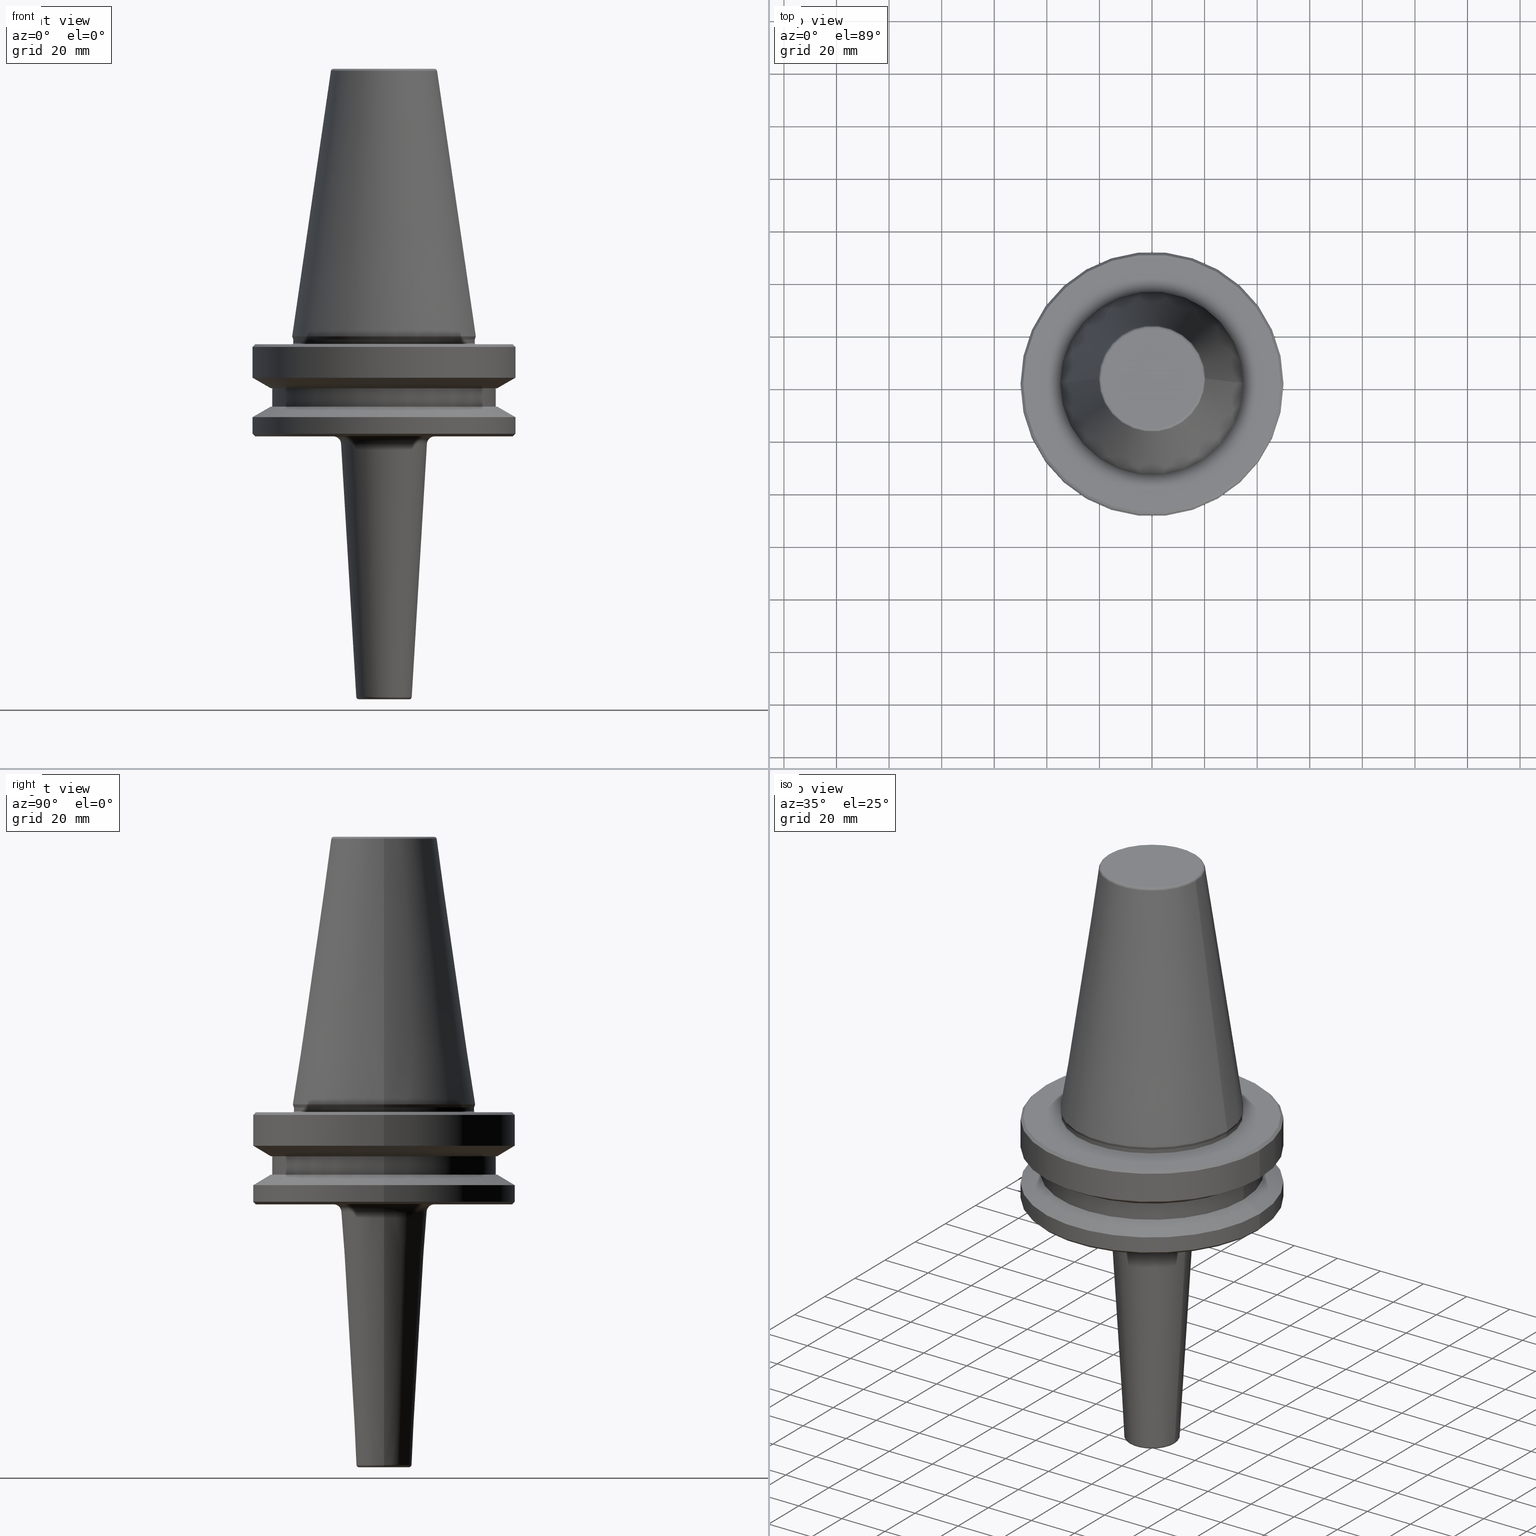
[diagram: canonical four-view strip — front | top / right | iso, engineering-drawing reading convention]
A machine part, canonical four-view strip (front | top / right | iso — engineering-drawing reading convention). The complete STEP part file that produces these views, byte-faithful:
ISO-10303-21;
HEADER;
FILE_DESCRIPTION (( 'STEP AP203' ),
    '1' );
FILE_NAME ('BT50 MCA12 100 AD+B-2.5G 25000 SL.STEP',
    '2019-05-24T10:57:20',
    ( '' ),
    ( '' ),
    'SwSTEP 2.0',
    'SolidWorks 2014',
    '' );
FILE_SCHEMA (( 'CONFIG_CONTROL_DESIGN' ));
ENDSEC;

DATA;
#1 = EDGE_LOOP ( 'NONE', ( #883, #694, #118, #502 ) ) ;
#2 = ADVANCED_FACE ( 'NONE', ( #193 ), #889, .T. ) ;
#3 = DIRECTION ( 'NONE',  ( 0.0000000000000000000, 0.0000000000000000000, -1.000000000000000000 ) ) ;
#4 = ADVANCED_FACE ( 'NONE', ( #160 ), #983, .T. ) ;
#5 = DIRECTION ( 'NONE',  ( -0.7071067811865474600, 8.659560562354931600E-017, 0.7071067811865475700 ) ) ;
#6 = CARTESIAN_POINT ( 'NONE',  ( 0.0000000000000000000, 0.0000000000000000000, -3.999999999999989800 ) ) ;
#7 = DIRECTION ( 'NONE',  ( 1.000000000000000000, 0.0000000000000000000, 0.0000000000000000000 ) ) ;
#8 = ADVANCED_FACE ( 'NONE', ( #744 ), #590, .T. ) ;
#9 =( NAMED_UNIT ( * ) SI_UNIT ( $, .STERADIAN. ) SOLID_ANGLE_UNIT ( ) );
#10 = ADVANCED_FACE ( 'NONE', ( #542 ), #720, .F. ) ;
#11 = CIRCLE ( 'NONE', #386, 10.55640646255638500 ) ;
#12 = EDGE_CURVE ( 'NONE', #451, #477, #570, .T. ) ;
#13 = CARTESIAN_POINT ( 'NONE',  ( 0.0000000000000000000, 0.0000000000000000000, -26.69999999999998900 ) ) ;
#14 = UNCERTAINTY_MEASURE_WITH_UNIT (LENGTH_MEASURE( 1.000000000000000100E-005 ), #472, 'distance_accuracy_value', 'NONE');
#15 = VERTEX_POINT ( 'NONE', #788 ) ;
#16 = ORIENTED_EDGE ( 'NONE', *, *, #769, .T. ) ;
#17 = LOCAL_TIME ( 16, 27, 20.00000000000000000, #228 ) ;
#18 = APPROVAL_ROLE ( '' ) ;
#19 = DIRECTION ( 'NONE',  ( -0.0000000000000000000, -0.0000000000000000000, 1.000000000000000000 ) ) ;
#20 = CIRCLE ( 'NONE', #410, 42.50000000000000000 ) ;
#21 = FACE_OUTER_BOUND ( 'NONE', #490, .T. ) ;
#22 = VERTEX_POINT ( 'NONE', #421 ) ;
#23 = CARTESIAN_POINT ( 'NONE',  ( 0.0000000000000000000, 0.0000000000000000000, 124.5046326327850600 ) ) ;
#24 = LINE ( 'NONE', #403, #427 ) ;
#25 = AXIS2_PLACEMENT_3D ( 'NONE', #544, #920, #704 ) ;
#26 = ADVANCED_FACE ( 'NONE', ( #617 ), #35, .T. ) ;
#27 = CIRCLE ( 'NONE', #690, 35.00000000000000000 ) ;
#28 = DIRECTION ( 'NONE',  ( 1.000000000000000000, 0.0000000000000000000, 0.0000000000000000000 ) ) ;
#29 = VERTEX_POINT ( 'NONE', #279 ) ;
#30 = ORIENTED_EDGE ( 'NONE', *, *, #534, .F. ) ;
#31 = AXIS2_PLACEMENT_3D ( 'NONE', #408, #493, #946 ) ;
#32 = ADVANCED_FACE ( 'NONE', ( #663 ), #250, .T. ) ;
#33 = CARTESIAN_POINT ( 'NONE',  ( 50.00000000000000000, 0.0000000000000000000, -30.69977999677324500 ) ) ;
#34 = DIRECTION ( 'NONE',  ( -0.0000000000000000000, -0.0000000000000000000, 1.000000000000000000 ) ) ;
#35 = CONICAL_SURFACE ( 'NONE', #476, 49.00000000000000000, 0.7853981633974482800 ) ;
#36 = AXIS2_PLACEMENT_3D ( 'NONE', #56, #616, #464 ) ;
#37 = CARTESIAN_POINT ( 'NONE',  ( 0.0000000000000000000, 0.0000000000000000000, -1.167677903268202300 ) ) ;
#38 = CARTESIAN_POINT ( 'NONE',  ( 50.00000000000000000, 6.123233995736766100E-015, -30.69977999677324500 ) ) ;
#39 = VERTEX_POINT ( 'NONE', #520 ) ;
#40 = CALENDAR_DATE ( 2019, 24, 5 ) ;
#41 = CARTESIAN_POINT ( 'NONE',  ( 19.21428326503027200, 0.0000000000000000000, 101.7999999999999800 ) ) ;
#42 = DIRECTION ( 'NONE',  ( 1.224646799147353200E-016, 1.000000000000000000, 0.0000000000000000000 ) ) ;
#43 = AXIS2_PLACEMENT_3D ( 'NONE', #503, #823, #119 ) ;
#44 = DIRECTION ( 'NONE',  ( 0.0000000000000000000, 0.0000000000000000000, -1.000000000000000000 ) ) ;
#45 = DIRECTION ( 'NONE',  ( -0.0000000000000000000, -0.0000000000000000000, 1.000000000000000000 ) ) ;
#46 = DIRECTION ( 'NONE',  ( 1.000000000000000000, 0.0000000000000000000, 0.0000000000000000000 ) ) ;
#47 = DIRECTION ( 'NONE',  ( 0.0000000000000000000, 0.0000000000000000000, -1.000000000000000000 ) ) ;
#48 = ORIENTED_EDGE ( 'NONE', *, *, #108, .F. ) ;
#49 = DIRECTION ( 'NONE',  ( -0.0000000000000000000, -0.0000000000000000000, 1.000000000000000000 ) ) ;
#50 = VERTEX_POINT ( 'NONE', #521 ) ;
#51 = DIRECTION ( 'NONE',  ( -0.1443082272673000800, 0.0000000000000000000, -0.9895327864921754600 ) ) ;
#52 = DIRECTION ( 'NONE',  ( 1.000000000000000000, 0.0000000000000000000, 0.0000000000000000000 ) ) ;
#53 = ADVANCED_BREP_SHAPE_REPRESENTATION ( 'BT50 MCA12 100 AD+B-2.5G 25000 SL', ( #558, #689 ), #180 ) ;
#54 = CARTESIAN_POINT ( 'NONE',  ( 0.0000000000000000000, 0.0000000000000000000, -2.999999999999988900 ) ) ;
#55 = EDGE_CURVE ( 'NONE', #524, #477, #11, .T. ) ;
#56 = CARTESIAN_POINT ( 'NONE',  ( 0.0000000000000000000, 0.0000000000000000000, -19.70000000000001000 ) ) ;
#57 = AXIS2_PLACEMENT_3D ( 'NONE', #435, #892, #52 ) ;
#58 = VERTEX_POINT ( 'NONE', #114 ) ;
#59 = ORIENTED_EDGE ( 'NONE', *, *, #93, .T. ) ;
#60 = DATE_AND_TIME ( #273, #467 ) ;
#61 = FACE_OUTER_BOUND ( 'NONE', #953, .T. ) ;
#62 = ORIENTED_EDGE ( 'NONE', *, *, #69, .F. ) ;
#63 = AXIS2_PLACEMENT_3D ( 'NONE', #170, #548, #917 ) ;
#64 = CARTESIAN_POINT ( 'NONE',  ( 0.0000000000000000000, 0.0000000000000000000, -41.00000000000000700 ) ) ;
#65 = LINE ( 'NONE', #498, #673 ) ;
#66 = CARTESIAN_POINT ( 'NONE',  ( 0.0000000000000000000, 42.50000000000000000, -26.70000000000000300 ) ) ;
#67 = ADVANCED_FACE ( 'NONE', ( #443, #789 ), #636, .F. ) ;
#68 = CARTESIAN_POINT ( 'NONE',  ( 0.0000000000000000000, 0.0000000000000000000, -19.70000000000001000 ) ) ;
#69 = EDGE_CURVE ( 'NONE', #329, #810, #373, .T. ) ;
#70 = EDGE_LOOP ( 'NONE', ( #62, #417, #933, #466 ) ) ;
#71 = CC_DESIGN_APPROVAL ( #132, ( #177 ) ) ;
#72 = ORIENTED_EDGE ( 'NONE', *, *, #280, .T. ) ;
#73 = DIRECTION ( 'NONE',  ( 1.000000000000000000, 0.0000000000000000000, 0.0000000000000000000 ) ) ;
#74 = VERTEX_POINT ( 'NONE', #982 ) ;
#75 = ADVANCED_FACE ( 'NONE', ( #990 ), #956, .T. ) ;
#76 = CIRCLE ( 'NONE', #733, 50.00000000000000000 ) ;
#77 = DIRECTION ( 'NONE',  ( 1.000000000000000000, 0.0000000000000000000, 0.0000000000000000000 ) ) ;
#78 = DIRECTION ( 'NONE',  ( 0.0000000000000000000, -0.0000000000000000000, 1.000000000000000000 ) ) ;
#79 = ADVANCED_FACE ( 'NONE', ( #21 ), #645, .T. ) ;
#80 = DIRECTION ( 'NONE',  ( 1.000000000000000000, 0.0000000000000000000, 0.0000000000000000000 ) ) ;
#81 = CARTESIAN_POINT ( 'NONE',  ( -16.33078061233106800, 1.999943820446889700E-015, -40.82032312781619500 ) ) ;
#82 = ORIENTED_EDGE ( 'NONE', *, *, #471, .T. ) ;
#83 = EDGE_CURVE ( 'NONE', #332, #810, #395, .T. ) ;
#84 = ADVANCED_FACE ( 'NONE', ( #766 ), #350, .T. ) ;
#85 = DIRECTION ( 'NONE',  ( 1.000000000000000000, 0.0000000000000000000, 0.0000000000000000000 ) ) ;
#86 = EDGE_LOOP ( 'NONE', ( #398, #455 ) ) ;
#87 = PERSON_AND_ORGANIZATION ( #339, #491 ) ;
#88 = ORIENTED_EDGE ( 'NONE', *, *, #611, .T. ) ;
#89 = DIRECTION ( 'NONE',  ( 1.000000000000000000, 0.0000000000000000000, 0.0000000000000000000 ) ) ;
#90 = ORIENTED_EDGE ( 'NONE', *, *, #630, .F. ) ;
#91 = MECHANICAL_CONTEXT ( 'NONE', #556, 'mechanical' ) ;
#92 = CARTESIAN_POINT ( 'NONE',  ( 42.50000000000000000, 0.0000000000000000000, -19.70000000000001000 ) ) ;
#93 = EDGE_CURVE ( 'NONE', #74, #22, #795, .T. ) ;
#94 = PERSON_AND_ORGANIZATION_ROLE ( 'design_supplier' ) ;
#95 = ADVANCED_FACE ( 'NONE', ( #401 ), #565, .T. ) ;
#96 = LINE ( 'NONE', #793, #430 ) ;
#97 = AXIS2_PLACEMENT_3D ( 'NONE', #175, #703, #785 ) ;
#98 = CARTESIAN_POINT ( 'NONE',  ( 0.0000000000000000000, 0.0000000000000000000, -137.0598922907279300 ) ) ;
#99 = FACE_OUTER_BOUND ( 'NONE', #699, .T. ) ;
#100 = VERTEX_POINT ( 'NONE', #442 ) ;
#101 = ADVANCED_FACE ( 'NONE', ( #178 ), #209, .T. ) ;
#102 = CARTESIAN_POINT ( 'NONE',  ( -43.07217782649105000, 0.0000000000000000000, -26.69999999999998900 ) ) ;
#103 = DIRECTION ( 'NONE',  ( -0.3420201433256682700, 4.188538737676986200E-017, 0.9396926207859086500 ) ) ;
#104 = VERTEX_POINT ( 'NONE', #511 ) ;
#105 = AXIS2_PLACEMENT_3D ( 'NONE', #825, #752, #291 ) ;
#106 = AXIS2_PLACEMENT_3D ( 'NONE', #345, #274, #730 ) ;
#107 = CIRCLE ( 'NONE', #298, 2.999999999999999100 ) ;
#108 = EDGE_CURVE ( 'NONE', #524, #683, #615, .T. ) ;
#109 = ADVANCED_FACE ( 'NONE', ( #388 ), #755, .T. ) ;
#110 = DESIGN_CONTEXT ( 'detailed design', #243, 'design' ) ;
#111 = ORIENTED_EDGE ( 'NONE', *, *, #901, .T. ) ;
#112 = ORIENTED_EDGE ( 'NONE', *, *, #506, .T. ) ;
#113 = DIRECTION ( 'NONE',  ( -0.8660254037844383700, 0.0000000000000000000, -0.5000000000000004400 ) ) ;
#114 = CARTESIAN_POINT ( 'NONE',  ( -50.00000000000000000, 6.123233995736766100E-015, -30.69977999677324500 ) ) ;
#115 = ORIENTED_EDGE ( 'NONE', *, *, #495, .T. ) ;
#116 = DIRECTION ( 'NONE',  ( 0.0000000000000000000, 0.0000000000000000000, -1.000000000000000000 ) ) ;
#117 = ORIENTED_EDGE ( 'NONE', *, *, #784, .F. ) ;
#118 = ORIENTED_EDGE ( 'NONE', *, *, #221, .T. ) ;
#119 = DIRECTION ( 'NONE',  ( -1.000000000000000000, 0.0000000000000000000, 0.0000000000000000000 ) ) ;
#120 = DIRECTION ( 'NONE',  ( -0.05989229072794650900, 7.334690213358238800E-018, 0.9982048454657787000 ) ) ;
#121 = ORIENTED_EDGE ( 'NONE', *, *, #473, .F. ) ;
#122 = CARTESIAN_POINT ( 'NONE',  ( 0.0000000000000000000, 0.0000000000000000000, -2.999999999999988900 ) ) ;
#123 = ADVANCED_FACE ( 'NONE', ( #783, #947 ), #322, .F. ) ;
#124 = CIRCLE ( 'NONE', #599, 50.00000000000000000 ) ;
#125 = CARTESIAN_POINT ( 'NONE',  ( 0.0000000000000000000, 0.0000000000000000000, -38.00000000000000700 ) ) ;
#126 = ORIENTED_EDGE ( 'NONE', *, *, #335, .T. ) ;
#127 = DIRECTION ( 'NONE',  ( -0.0000000000000000000, -0.0000000000000000000, 1.000000000000000000 ) ) ;
#128 = DIRECTION ( 'NONE',  ( -0.0000000000000000000, -0.0000000000000000000, 1.000000000000000000 ) ) ;
#129 = VERTEX_POINT ( 'NONE', #92 ) ;
#130 = CONICAL_SURFACE ( 'NONE', #43, 50.00000000000000000, 1.047197551196597200 ) ;
#131 = DIRECTION ( 'NONE',  ( -0.0000000000000000000, -0.0000000000000000000, 1.000000000000000000 ) ) ;
#132 = APPROVAL ( #854, 'UNSPECIFIED' ) ;
#133 = DIRECTION ( 'NONE',  ( -1.000000000000000000, 0.0000000000000000000, 0.0000000000000000000 ) ) ;
#134 = CIRCLE ( 'NONE', #840, 50.00000000000000000 ) ;
#135 = ORIENTED_EDGE ( 'NONE', *, *, #966, .F. ) ;
#136 = ORIENTED_EDGE ( 'NONE', *, *, #723, .F. ) ;
#137 = DIRECTION ( 'NONE',  ( 1.000000000000000000, 0.0000000000000000000, 0.0000000000000000000 ) ) ;
#138 = AXIS2_PLACEMENT_3D ( 'NONE', #904, #449, #833 ) ;
#139 = DIRECTION ( 'NONE',  ( -0.0000000000000000000, -0.0000000000000000000, 1.000000000000000000 ) ) ;
#140 = EDGE_LOOP ( 'NONE', ( #227, #494, #708, #136 ) ) ;
#141 = ORIENTED_EDGE ( 'NONE', *, *, #580, .T. ) ;
#142 = ORIENTED_EDGE ( 'NONE', *, *, #985, .T. ) ;
#143 = EDGE_LOOP ( 'NONE', ( #731, #397, #867, #272 ) ) ;
#144 = AXIS2_PLACEMENT_3D ( 'NONE', #68, #362, #923 ) ;
#145 = AXIS2_PLACEMENT_3D ( 'NONE', #719, #311, #830 ) ;
#146 = TOROIDAL_SURFACE ( 'NONE', #215, 35.00000000000000000, 0.5000000000000004400 ) ;
#147 = ORIENTED_EDGE ( 'NONE', *, *, #390, .T. ) ;
#148 = ADVANCED_FACE ( 'NONE', ( #343 ), #695, .T. ) ;
#149 = EDGE_CURVE ( 'NONE', #129, #104, #200, .T. ) ;
#150 = ORIENTED_EDGE ( 'NONE', *, *, #276, .F. ) ;
#151 = LOCAL_TIME ( 16, 27, 20.00000000000000000, #349 ) ;
#152 = VECTOR ( 'NONE', #294, 1000.000000000000000 ) ;
#153 = CIRCLE ( 'NONE', #63, 50.00000000000000000 ) ;
#154 = DIRECTION ( 'NONE',  ( -0.0000000000000000000, -0.0000000000000000000, 1.000000000000000000 ) ) ;
#155 = CC_DESIGN_PERSON_AND_ORGANIZATION_ASSIGNMENT ( #792, #561, ( #790 ) ) ;
#156 = VERTEX_POINT ( 'NONE', #620 ) ;
#157 = AXIS2_PLACEMENT_3D ( 'NONE', #440, #613, #895 ) ;
#158 = AXIS2_PLACEMENT_3D ( 'NONE', #218, #749, #540 ) ;
#159 = DIRECTION ( 'NONE',  ( 0.0000000000000000000, 0.0000000000000000000, -1.000000000000000000 ) ) ;
#160 = FACE_OUTER_BOUND ( 'NONE', #619, .T. ) ;
#161 = ORIENTED_EDGE ( 'NONE', *, *, #657, .T. ) ;
#162 = ADVANCED_FACE ( 'NONE', ( #418 ), #146, .F. ) ;
#163 = CIRCLE ( 'NONE', #232, 9.558201617090603000 ) ;
#164 = LINE ( 'NONE', #886, #624 ) ;
#165 = DIRECTION ( 'NONE',  ( -0.0000000000000000000, -0.0000000000000000000, 1.000000000000000000 ) ) ;
#166 = LINE ( 'NONE', #199, #541 ) ;
#167 = ORIENTED_EDGE ( 'NONE', *, *, #837, .F. ) ;
#168 = DIRECTION ( 'NONE',  ( 1.000000000000000000, 0.0000000000000000000, 0.0000000000000000000 ) ) ;
#169 = AXIS2_PLACEMENT_3D ( 'NONE', #470, #131, #977 ) ;
#170 = CARTESIAN_POINT ( 'NONE',  ( 0.0000000000000000000, 0.0000000000000000000, -15.70022000322675400 ) ) ;
#171 = ORIENTED_EDGE ( 'NONE', *, *, #55, .F. ) ;
#172 = ORIENTED_EDGE ( 'NONE', *, *, #512, .T. ) ;
#173 = DIRECTION ( 'NONE',  ( 0.0000000000000000000, 0.0000000000000000000, -1.000000000000000000 ) ) ;
#174 = LINE ( 'NONE', #911, #387 ) ;
#175 = CARTESIAN_POINT ( 'NONE',  ( 0.0000000000000000000, 0.0000000000000000000, -19.70000000000001000 ) ) ;
#176 = ADVANCED_FACE ( 'NONE', ( #807 ), #130, .T. ) ;
#177 = PRODUCT_DEFINITION_FORMATION_WITH_SPECIFIED_SOURCE ( 'ANY', '', #431, .NOT_KNOWN. ) ;
#178 = FACE_OUTER_BOUND ( 'NONE', #489, .T. ) ;
#179 = EDGE_LOOP ( 'NONE', ( #16, #555, #351, #943 ) ) ;
#180 =( GEOMETRIC_REPRESENTATION_CONTEXT ( 3 ) GLOBAL_UNCERTAINTY_ASSIGNED_CONTEXT ( ( #14 ) ) GLOBAL_UNIT_ASSIGNED_CONTEXT ( ( #472, #851, #9 ) ) REPRESENTATION_CONTEXT ( 'NONE', 'WORKASPACE' ) );
#181 = DIRECTION ( 'NONE',  ( 1.000000000000000000, 0.0000000000000000000, 0.0000000000000000000 ) ) ;
#182 = AXIS2_PLACEMENT_3D ( 'NONE', #628, #741, #300 ) ;
#183 = ADVANCED_FACE ( 'NONE', ( #584 ), #768, .T. ) ;
#184 = APPROVAL_STATUS ( 'not_yet_approved' ) ;
#185 = EDGE_LOOP ( 'NONE', ( #651, #815 ) ) ;
#186 = CALENDAR_DATE ( 2019, 24, 5 ) ;
#187 = AXIS2_PLACEMENT_3D ( 'NONE', #202, #664, #173 ) ;
#188 = EDGE_LOOP ( 'NONE', ( #948, #514, #289, #986 ) ) ;
#189 = AXIS2_PLACEMENT_3D ( 'NONE', #223, #786, #653 ) ;
#190 = DIRECTION ( 'NONE',  ( -0.0000000000000000000, -0.0000000000000000000, 1.000000000000000000 ) ) ;
#191 = EDGE_LOOP ( 'NONE', ( #701, #147, #406, #344 ) ) ;
#192 = DIRECTION ( 'NONE',  ( 1.000000000000000000, 0.0000000000000000000, 0.0000000000000000000 ) ) ;
#193 = FACE_OUTER_BOUND ( 'NONE', #938, .T. ) ;
#194 = FACE_OUTER_BOUND ( 'NONE', #293, .T. ) ;
#195 = CIRCLE ( 'NONE', #342, 19.21428326503027200 ) ;
#196 = CC_DESIGN_DATE_AND_TIME_ASSIGNMENT ( #831, #396, ( #633 ) ) ;
#197 = ORIENTED_EDGE ( 'NONE', *, *, #879, .T. ) ;
#198 = CARTESIAN_POINT ( 'NONE',  ( 0.0000000000000000000, 0.0000000000000000000, 100.9443082272672900 ) ) ;
#199 = CARTESIAN_POINT ( 'NONE',  ( 43.07217782649103600, 0.0000000000000000000, -19.70000000000001000 ) ) ;
#200 = CIRCLE ( 'NONE', #36, 42.50000000000000000 ) ;
#201 = AXIS2_PLACEMENT_3D ( 'NONE', #894, #378, #429 ) ;
#202 = CARTESIAN_POINT ( 'NONE',  ( 9.558201617090603000, 0.0000000000000000000, -137.0000000000000000 ) ) ;
#203 = VECTOR ( 'NONE', #573, 1000.000000000000000 ) ;
#204 = CARTESIAN_POINT ( 'NONE',  ( 0.0000000000000000000, 0.0000000000000000000, -2.999999999999988900 ) ) ;
#205 = CC_DESIGN_DATE_AND_TIME_ASSIGNMENT ( #954, #652, ( #790 ) ) ;
#206 = ORIENTED_EDGE ( 'NONE', *, *, #523, .T. ) ;
#207 = PERSON_AND_ORGANIZATION ( #339, #491 ) ;
#208 = VECTOR ( 'NONE', #361, 1000.000000000000000 ) ;
#209 = CONICAL_SURFACE ( 'NONE', #182, 50.00000000000000000, 1.047197551196597200 ) ;
#210 = ORIENTED_EDGE ( 'NONE', *, *, #323, .T. ) ;
#211 = DIRECTION ( 'NONE',  ( 0.05989229072794650900, 0.0000000000000000000, 0.9982048454657787000 ) ) ;
#212 = CARTESIAN_POINT ( 'NONE',  ( 34.50000000000000000, 0.0000000000000000000, 124.5046326327850600 ) ) ;
#213 = EDGE_CURVE ( 'NONE', #897, #332, #153, .T. ) ;
#214 = AXIS2_PLACEMENT_3D ( 'NONE', #567, #264, #564 ) ;
#215 = AXIS2_PLACEMENT_3D ( 'NONE', #238, #49, #85 ) ;
#216 = CIRCLE ( 'NONE', #692, 20.20381605152244500 ) ;
#217 = VECTOR ( 'NONE', #710, 999.9999999999998900 ) ;
#218 = CARTESIAN_POINT ( 'NONE',  ( 19.21428326503027200, 0.0000000000000000000, 100.7999999999999800 ) ) ;
#219 = DIRECTION ( 'NONE',  ( 1.000000000000000000, 0.0000000000000000000, 0.0000000000000000000 ) ) ;
#220 = ORIENTED_EDGE ( 'NONE', *, *, #962, .F. ) ;
#221 = EDGE_CURVE ( 'NONE', #74, #709, #535, .T. ) ;
#222 = AXIS2_PLACEMENT_3D ( 'NONE', #688, #905, #993 ) ;
#223 = CARTESIAN_POINT ( 'NONE',  ( 0.0000000000000000000, 0.0000000000000000000, -37.00000000000002100 ) ) ;
#224 = AXIS2_PLACEMENT_3D ( 'NONE', #900, #441, #713 ) ;
#225 = CIRCLE ( 'NONE', #376, 19.32539514872840400 ) ;
#226 = CARTESIAN_POINT ( 'NONE',  ( 0.0000000000000000000, 0.0000000000000000000, -2.500000000000002200 ) ) ;
#227 = ORIENTED_EDGE ( 'NONE', *, *, #832, .F. ) ;
#228 = COORDINATED_UNIVERSAL_TIME_OFFSET ( 5, 30, .AHEAD. ) ;
#229 = EDGE_CURVE ( 'NONE', #821, #50, #312, .T. ) ;
#230 = ORIENTED_EDGE ( 'NONE', *, *, #822, .F. ) ;
#231 = VECTOR ( 'NONE', #968, 1000.000000000000000 ) ;
#232 = AXIS2_PLACEMENT_3D ( 'NONE', #981, #773, #444 ) ;
#233 = DIRECTION ( 'NONE',  ( -0.0000000000000000000, -0.0000000000000000000, 1.000000000000000000 ) ) ;
#234 = ADVANCED_FACE ( 'NONE', ( #481 ), #572, .T. ) ;
#235 = AXIS2_PLACEMENT_3D ( 'NONE', #557, #707, #780 ) ;
#236 = ADVANCED_FACE ( 'NONE', ( #352 ), #910, .T. ) ;
#237 = DIRECTION ( 'NONE',  ( -0.0000000000000000000, -0.0000000000000000000, 1.000000000000000000 ) ) ;
#238 = CARTESIAN_POINT ( 'NONE',  ( 0.0000000000000000000, 0.0000000000000000000, -2.500000000000002200 ) ) ;
#239 = EDGE_CURVE ( 'NONE', #585, #308, #107, .T. ) ;
#240 = AXIS2_PLACEMENT_3D ( 'NONE', #848, #533, #868 ) ;
#241 = DIRECTION ( 'NONE',  ( 0.1443082272673000800, 1.767266086135278300E-017, -0.9895327864921754600 ) ) ;
#242 = ORIENTED_EDGE ( 'NONE', *, *, #842, .T. ) ;
#243 = APPLICATION_CONTEXT ( 'configuration controlled 3d designs of mechanical parts and assemblies' ) ;
#244 = CYLINDRICAL_SURFACE ( 'NONE', #929, 50.00000000000000000 ) ;
#245 = ORIENTED_EDGE ( 'NONE', *, *, #229, .F. ) ;
#246 = CARTESIAN_POINT ( 'NONE',  ( -10.55640646255637800, 1.292786938486810200E-015, -137.0598922907279300 ) ) ;
#247 = AXIS2_PLACEMENT_3D ( 'NONE', #928, #34, #553 ) ;
#248 = DIRECTION ( 'NONE',  ( 1.224646799147353200E-016, 1.000000000000000000, 0.0000000000000000000 ) ) ;
#249 = PRODUCT_RELATED_PRODUCT_CATEGORY ( 'detail', '', ( #431 ) ) ;
#250 = CONICAL_SURFACE ( 'NONE', #439, 16.50000000000003900, 0.05992815512120767300 ) ;
#251 = AXIS2_PLACEMENT_3D ( 'NONE', #303, #366, #855 ) ;
#252 = ORIENTED_EDGE ( 'NONE', *, *, #69, .T. ) ;
#253 = ORIENTED_EDGE ( 'NONE', *, *, #266, .T. ) ;
#254 = LOCAL_TIME ( 16, 27, 20.00000000000000000, #446 ) ;
#255 = AXIS2_PLACEMENT_3D ( 'NONE', #384, #3, #670 ) ;
#256 = APPLICATION_PROTOCOL_DEFINITION ( 'international standard', 'config_control_design', 1994, #243 ) ;
#257 = CARTESIAN_POINT ( 'NONE',  ( 50.00000000000000000, 0.0000000000000000000, 124.5046326327850600 ) ) ;
#258 = CIRCLE ( 'NONE', #157, 43.07217782649105000 ) ;
#259 = ORIENTED_EDGE ( 'NONE', *, *, #560, .T. ) ;
#260 = APPROVAL_ROLE ( '' ) ;
#261 = CARTESIAN_POINT ( 'NONE',  ( 0.0000000000000000000, 0.0000000000000000000, -1.167677903268202300 ) ) ;
#262 = ORIENTED_EDGE ( 'NONE', *, *, #108, .T. ) ;
#263 = AXIS2_PLACEMENT_3D ( 'NONE', #37, #675, #28 ) ;
#264 = DIRECTION ( 'NONE',  ( 0.0000000000000000000, 0.0000000000000000000, -1.000000000000000000 ) ) ;
#265 = FACE_OUTER_BOUND ( 'NONE', #1003, .T. ) ;
#266 = EDGE_CURVE ( 'NONE', #356, #683, #507, .T. ) ;
#267 = CC_DESIGN_PERSON_AND_ORGANIZATION_ASSIGNMENT ( #666, #787, ( #633 ) ) ;
#268 = EDGE_LOOP ( 'NONE', ( #893, #379, #360, #121 ) ) ;
#269 = ADVANCED_FACE ( 'NONE', ( #717 ), #629, .T. ) ;
#270 = TOROIDAL_SURFACE ( 'NONE', #375, 9.558201617090603000, 0.9999999999999879000 ) ;
#271 = DIRECTION ( 'NONE',  ( -1.000000000000000000, 0.0000000000000000000, -0.0000000000000000000 ) ) ;
#272 = ORIENTED_EDGE ( 'NONE', *, *, #428, .F. ) ;
#273 = CALENDAR_DATE ( 2019, 24, 5 ) ;
#274 = DIRECTION ( 'NONE',  ( -0.0000000000000000000, -0.0000000000000000000, 1.000000000000000000 ) ) ;
#275 = ORIENTED_EDGE ( 'NONE', *, *, #912, .F. ) ;
#276 = EDGE_CURVE ( 'NONE', #39, #492, #965, .T. ) ;
#277 = DIRECTION ( 'NONE',  ( -0.0000000000000000000, -0.0000000000000000000, 1.000000000000000000 ) ) ;
#278 = DIRECTION ( 'NONE',  ( 1.000000000000000000, 0.0000000000000000000, 0.0000000000000000000 ) ) ;
#279 = CARTESIAN_POINT ( 'NONE',  ( -49.00000000000000000, 6.062001655779398500E-015, -38.00000000000002100 ) ) ;
#280 = EDGE_CURVE ( 'NONE', #669, #451, #163, .T. ) ;
#281 = DIRECTION ( 'NONE',  ( -0.0000000000000000000, -0.0000000000000000000, 1.000000000000000000 ) ) ;
#282 = CIRCLE ( 'NONE', #297, 34.50000000000000000 ) ;
#283 = CARTESIAN_POINT ( 'NONE',  ( 0.0000000000000000000, 0.0000000000000000000, -38.00000000000002100 ) ) ;
#284 = ORIENTED_EDGE ( 'NONE', *, *, #580, .F. ) ;
#285 = ORIENTED_EDGE ( 'NONE', *, *, #501, .F. ) ;
#286 = CC_DESIGN_APPROVAL ( #604, ( #633 ) ) ;
#287 = CYLINDRICAL_SURFACE ( 'NONE', #971, 42.50000000000000000 ) ;
#288 = CARTESIAN_POINT ( 'NONE',  ( 0.0000000000000000000, 0.0000000000000000000, -19.70000000000001000 ) ) ;
#289 = ORIENTED_EDGE ( 'NONE', *, *, #543, .F. ) ;
#290 = AXIS2_PLACEMENT_3D ( 'NONE', #681, #759, #685 ) ;
#291 = DIRECTION ( 'NONE',  ( 1.000000000000000000, 0.0000000000000000000, 0.0000000000000000000 ) ) ;
#292 = CARTESIAN_POINT ( 'NONE',  ( 9.558201617090603000, 0.0000000000000000000, -137.9999999999999700 ) ) ;
#293 = EDGE_LOOP ( 'NONE', ( #579, #944 ) ) ;
#294 = DIRECTION ( 'NONE',  ( 0.7071067811865474600, 8.659560562354931600E-017, -0.7071067811865475700 ) ) ;
#295 = EDGE_LOOP ( 'NONE', ( #806, #727, #763, #924 ) ) ;
#296 = PERSON_AND_ORGANIZATION ( #339, #491 ) ;
#297 = AXIS2_PLACEMENT_3D ( 'NONE', #819, #881, #505 ) ;
#298 = AXIS2_PLACEMENT_3D ( 'NONE', #644, #248, #846 ) ;
#299 = DIRECTION ( 'NONE',  ( -0.0000000000000000000, -0.0000000000000000000, 1.000000000000000000 ) ) ;
#300 = DIRECTION ( 'NONE',  ( -1.000000000000000000, 0.0000000000000000000, 0.0000000000000000000 ) ) ;
#301 = ADVANCED_FACE ( 'NONE', ( #941 ), #380, .T. ) ;
#302 = DIRECTION ( 'NONE',  ( -0.0000000000000000000, -0.0000000000000000000, 1.000000000000000000 ) ) ;
#303 = CARTESIAN_POINT ( 'NONE',  ( 0.0000000000000000000, 0.0000000000000000000, -137.0000000000000000 ) ) ;
#304 = VECTOR ( 'NONE', #936, 1000.000000000000000 ) ;
#305 = LINE ( 'NONE', #38, #433 ) ;
#306 = DIRECTION ( 'NONE',  ( -1.000000000000000000, 0.0000000000000000000, -0.0000000000000000000 ) ) ;
#307 = VERTEX_POINT ( 'NONE', #751 ) ;
#308 = VERTEX_POINT ( 'NONE', #81 ) ;
#309 = DIRECTION ( 'NONE',  ( -0.0000000000000000000, -0.0000000000000000000, 1.000000000000000000 ) ) ;
#310 = ADVANCED_FACE ( 'NONE', ( #334 ), #545, .F. ) ;
#311 = DIRECTION ( 'NONE',  ( -0.0000000000000000000, -0.0000000000000000000, 1.000000000000000000 ) ) ;
#312 = CIRCLE ( 'NONE', #290, 34.92499999999999700 ) ;
#313 = CARTESIAN_POINT ( 'NONE',  ( -34.92499999999999700, 4.277078946022131700E-015, 0.0000000000000000000 ) ) ;
#314 = AXIS2_PLACEMENT_3D ( 'NONE', #538, #973, #632 ) ;
#315 = CARTESIAN_POINT ( 'NONE',  ( 34.92499999999999700, 4.277078946022130900E-015, 0.0000000000000000000 ) ) ;
#316 = ORIENTED_EDGE ( 'NONE', *, *, #485, .F. ) ;
#317 = EDGE_CURVE ( 'NONE', #340, #156, #357, .T. ) ;
#318 = ORIENTED_EDGE ( 'NONE', *, *, #864, .F. ) ;
#319 = ORIENTED_EDGE ( 'NONE', *, *, #827, .T. ) ;
#320 = CARTESIAN_POINT ( 'NONE',  ( 50.00000000000000000, 0.0000000000000000000, 124.5046326327850600 ) ) ;
#321 = ORIENTED_EDGE ( 'NONE', *, *, #611, .F. ) ;
#322 = PLANE ( 'NONE',  #25 ) ;
#323 = EDGE_CURVE ( 'NONE', #996, #593, #216, .T. ) ;
#324 = ORIENTED_EDGE ( 'NONE', *, *, #213, .F. ) ;
#325 = APPROVAL_ROLE ( '' ) ;
#326 = CIRCLE ( 'NONE', #456, 10.55640646255638500 ) ;
#327 = DIRECTION ( 'NONE',  ( -1.000000000000000000, 1.224646799147353700E-016, 0.0000000000000000000 ) ) ;
#328 = ADVANCED_FACE ( 'NONE', ( #194 ), #836, .T. ) ;
#329 = VERTEX_POINT ( 'NONE', #641 ) ;
#330 = AXIS2_PLACEMENT_3D ( 'NONE', #487, #47, #133 ) ;
#331 = CARTESIAN_POINT ( 'NONE',  ( 0.0000000000000000000, 0.0000000000000000000, 0.0000000000000000000 ) ) ;
#332 = VERTEX_POINT ( 'NONE', #526 ) ;
#333 = ORIENTED_EDGE ( 'NONE', *, *, #213, .T. ) ;
#334 = FACE_OUTER_BOUND ( 'NONE', #648, .T. ) ;
#335 = EDGE_CURVE ( 'NONE', #810, #816, #76, .T. ) ;
#336 = EDGE_CURVE ( 'NONE', #58, #709, #134, .T. ) ;
#337 = VERTEX_POINT ( 'NONE', #587 ) ;
#338 = AXIS2_PLACEMENT_3D ( 'NONE', #609, #281, #762 ) ;
#339 = PERSON ( 'UNSPECIFIED', 'UNSPECIFIED', 'UNSPECIFIED', ('UNSPECIFIED'), ('UNSPECIFIED'), ('UNSPECIFIED') ) ;
#340 = VERTEX_POINT ( 'NONE', #643 ) ;
#341 = ORIENTED_EDGE ( 'NONE', *, *, #774, .T. ) ;
#342 = AXIS2_PLACEMENT_3D ( 'NONE', #606, #964, #219 ) ;
#343 = FACE_OUTER_BOUND ( 'NONE', #770, .T. ) ;
#344 = ORIENTED_EDGE ( 'NONE', *, *, #83, .F. ) ;
#345 = CARTESIAN_POINT ( 'NONE',  ( 0.0000000000000000000, 0.0000000000000000000, -1.167677903268202300 ) ) ;
#346 = DIRECTION ( 'NONE',  ( 1.000000000000000000, 0.0000000000000000000, 0.0000000000000000000 ) ) ;
#347 = ADVANCED_FACE ( 'NONE', ( #508 ), #270, .T. ) ;
#348 = EDGE_CURVE ( 'NONE', #996, #50, #679, .T. ) ;
#349 = COORDINATED_UNIVERSAL_TIME_OFFSET ( 5, 30, .AHEAD. ) ;
#350 = CYLINDRICAL_SURFACE ( 'NONE', #235, 34.50000000000000000 ) ;
#351 = ORIENTED_EDGE ( 'NONE', *, *, #93, .F. ) ;
#352 = FACE_OUTER_BOUND ( 'NONE', #191, .T. ) ;
#353 = DIRECTION ( 'NONE',  ( 0.0000000000000000000, 0.0000000000000000000, -1.000000000000000000 ) ) ;
#354 = DIRECTION ( 'NONE',  ( -0.0000000000000000000, -0.0000000000000000000, 1.000000000000000000 ) ) ;
#355 = CARTESIAN_POINT ( 'NONE',  ( -20.20381605152244500, 0.0000000000000000000, 100.9443082272672900 ) ) ;
#356 = VERTEX_POINT ( 'NONE', #696 ) ;
#357 = CIRCLE ( 'NONE', #438, 0.5000000000000004400 ) ;
#358 = VECTOR ( 'NONE', #602, 1000.000000000000000 ) ;
#359 = VERTEX_POINT ( 'NONE', #463 ) ;
#360 = ORIENTED_EDGE ( 'NONE', *, *, #901, .F. ) ;
#361 = DIRECTION ( 'NONE',  ( -0.0000000000000000000, -0.0000000000000000000, 1.000000000000000000 ) ) ;
#362 = DIRECTION ( 'NONE',  ( -0.0000000000000000000, -0.0000000000000000000, 1.000000000000000000 ) ) ;
#363 = CIRCLE ( 'NONE', #138, 0.5000000000000004400 ) ;
#364 = CARTESIAN_POINT ( 'NONE',  ( 0.0000000000000000000, 0.0000000000000000000, -1.167677903268202300 ) ) ;
#365 = ORIENTED_EDGE ( 'NONE', *, *, #404, .F. ) ;
#366 = DIRECTION ( 'NONE',  ( -0.0000000000000000000, -0.0000000000000000000, 1.000000000000000000 ) ) ;
#367 = ADVANCED_FACE ( 'NONE', ( #482 ), #287, .T. ) ;
#368 = LINE ( 'NONE', #642, #654 ) ;
#369 = CARTESIAN_POINT ( 'NONE',  ( 0.0000000000000000000, 0.0000000000000000000, -19.70000000000001000 ) ) ;
#370 = EDGE_LOOP ( 'NONE', ( #422, #242, #756, #48 ) ) ;
#371 = LOCAL_TIME ( 16, 27, 20.00000000000000000, #594 ) ;
#372 = EDGE_LOOP ( 'NONE', ( #72, #549, #171, #674 ) ) ;
#373 = LINE ( 'NONE', #382, #152 ) ;
#374 = ORIENTED_EDGE ( 'NONE', *, *, #559, .T. ) ;
#375 = AXIS2_PLACEMENT_3D ( 'NONE', #459, #1001, #845 ) ;
#376 = AXIS2_PLACEMENT_3D ( 'NONE', #509, #525, #581 ) ;
#377 = CARTESIAN_POINT ( 'NONE',  ( -9.558201617090603000, 1.170542101597506300E-015, -137.0000000000000000 ) ) ;
#378 = DIRECTION ( 'NONE',  ( -0.0000000000000000000, -0.0000000000000000000, 1.000000000000000000 ) ) ;
#379 = ORIENTED_EDGE ( 'NONE', *, *, #822, .T. ) ;
#380 = CONICAL_SURFACE ( 'NONE', #263, 34.50000000000000000, 0.3490658503988654500 ) ;
#381 = VECTOR ( 'NONE', #128, 1000.000000000000000 ) ;
#382 = CARTESIAN_POINT ( 'NONE',  ( 50.00000000000000000, 6.123233995736766100E-015, -3.999999999999989800 ) ) ;
#383 = CIRCLE ( 'NONE', #214, 16.33078061233106800 ) ;
#384 = CARTESIAN_POINT ( 'NONE',  ( 0.0000000000000000000, 0.0000000000000000000, 0.0000000000000000000 ) ) ;
#385 = CARTESIAN_POINT ( 'NONE',  ( 34.50000000000000000, 0.0000000000000000000, -1.167677903268202300 ) ) ;
#386 = AXIS2_PLACEMENT_3D ( 'NONE', #909, #826, #460 ) ;
#387 = VECTOR ( 'NONE', #309, 1000.000000000000000 ) ;
#388 = FACE_OUTER_BOUND ( 'NONE', #295, .T. ) ;
#389 = ADVANCED_FACE ( 'NONE', ( #718, #697 ), #999, .F. ) ;
#390 = EDGE_CURVE ( 'NONE', #897, #816, #174, .T. ) ;
#391 = AXIS2_PLACEMENT_3D ( 'NONE', #510, #747, #678 ) ;
#392 = AXIS2_PLACEMENT_3D ( 'NONE', #364, #299, #758 ) ;
#393 = CIRCLE ( 'NONE', #605, 49.00000000000000000 ) ;
#394 = AXIS2_PLACEMENT_3D ( 'NONE', #767, #116, #687 ) ;
#395 = LINE ( 'NONE', #257, #625 ) ;
#396 = DATE_TIME_ROLE ( 'creation_date' ) ;
#397 = ORIENTED_EDGE ( 'NONE', *, *, #317, .T. ) ;
#398 = ORIENTED_EDGE ( 'NONE', *, *, #471, .F. ) ;
#399 = APPROVAL_DATE_TIME ( #622, #132 ) ;
#400 = LINE ( 'NONE', #680, #208 ) ;
#401 = FACE_OUTER_BOUND ( 'NONE', #372, .T. ) ;
#402 = CARTESIAN_POINT ( 'NONE',  ( 49.00000000000000000, 0.0000000000000000000, -38.00000000000002100 ) ) ;
#403 = CARTESIAN_POINT ( 'NONE',  ( -50.00000000000000000, 0.0000000000000000000, -3.999999999999989800 ) ) ;
#404 = EDGE_CURVE ( 'NONE', #847, #595, #612, .T. ) ;
#405 = LINE ( 'NONE', #870, #771 ) ;
#406 = ORIENTED_EDGE ( 'NONE', *, *, #335, .F. ) ;
#407 = EDGE_LOOP ( 'NONE', ( #550, #319 ) ) ;
#408 = CARTESIAN_POINT ( 'NONE',  ( 0.0000000000000000000, 0.0000000000000000000, 124.5046326327850600 ) ) ;
#409 = ADVANCED_FACE ( 'NONE', ( #824 ), #244, .T. ) ;
#410 = AXIS2_PLACEMENT_3D ( 'NONE', #288, #478, #80 ) ;
#411 = LINE ( 'NONE', #212, #381 ) ;
#412 = AXIS2_PLACEMENT_3D ( 'NONE', #13, #880, #483 ) ;
#413 = AXIS2_PLACEMENT_3D ( 'NONE', #369, #302, #659 ) ;
#414 = ORIENTED_EDGE ( 'NONE', *, *, #485, .T. ) ;
#415 = ADVANCED_FACE ( 'NONE', ( #640, #416 ), #834, .F. ) ;
#416 = FACE_OUTER_BOUND ( 'NONE', #794, .T. ) ;
#417 = ORIENTED_EDGE ( 'NONE', *, *, #817, .F. ) ;
#418 = FACE_OUTER_BOUND ( 'NONE', #143, .T. ) ;
#419 = DIRECTION ( 'NONE',  ( 0.8660254037844388200, 0.0000000000000000000, 0.4999999999999997200 ) ) ;
#420 = ADVANCED_FACE ( 'NONE', ( #582 ), #908, .F. ) ;
#421 = CARTESIAN_POINT ( 'NONE',  ( -50.00000000000000000, 6.123233995736766100E-015, -37.00000000000002100 ) ) ;
#422 = ORIENTED_EDGE ( 'NONE', *, *, #55, .T. ) ;
#423 = APPROVAL_PERSON_ORGANIZATION ( #649, #132, #18 ) ;
#424 = LINE ( 'NONE', #899, #231 ) ;
#425 = DIRECTION ( 'NONE',  ( -0.0000000000000000000, -0.0000000000000000000, 1.000000000000000000 ) ) ;
#426 = DIRECTION ( 'NONE',  ( -0.0000000000000000000, -0.0000000000000000000, 1.000000000000000000 ) ) ;
#427 = VECTOR ( 'NONE', #546, 1000.000000000000000 ) ;
#428 = EDGE_CURVE ( 'NONE', #896, #15, #363, .T. ) ;
#429 = DIRECTION ( 'NONE',  ( 1.000000000000000000, 0.0000000000000000000, 0.0000000000000000000 ) ) ;
#430 = VECTOR ( 'NONE', #103, 999.9999999999998900 ) ;
#431 = PRODUCT ( 'BT50 MCA12 100 AD+B-2.5G 25000 SL', 'BT50 MCA12 100 AD+B-2.5G 25000 SL', '', ( #91 ) ) ;
#432 = DIRECTION ( 'NONE',  ( -0.8660254037844388200, 1.060575238724907200E-016, 0.4999999999999997200 ) ) ;
#433 = VECTOR ( 'NONE', #856, 1000.000000000000000 ) ;
#434 = ORIENTED_EDGE ( 'NONE', *, *, #950, .F. ) ;
#435 = CARTESIAN_POINT ( 'NONE',  ( 0.0000000000000000000, 0.0000000000000000000, -37.00000000000002100 ) ) ;
#436 = ORIENTED_EDGE ( 'NONE', *, *, #348, .T. ) ;
#437 = DIRECTION ( 'NONE',  ( -0.0000000000000000000, -0.0000000000000000000, 1.000000000000000000 ) ) ;
#438 = AXIS2_PLACEMENT_3D ( 'NONE', #745, #863, #686 ) ;
#439 = AXIS2_PLACEMENT_3D ( 'NONE', #814, #959, #828 ) ;
#440 = CARTESIAN_POINT ( 'NONE',  ( 0.0000000000000000000, 0.0000000000000000000, -26.69999999999998900 ) ) ;
#441 = DIRECTION ( 'NONE',  ( 0.0000000000000000000, -1.000000000000000000, 0.0000000000000000000 ) ) ;
#442 = CARTESIAN_POINT ( 'NONE',  ( -19.21428326503027200, 2.413662457824437800E-015, 101.7999999999999800 ) ) ;
#443 = FACE_BOUND ( 'NONE', #407, .T. ) ;
#444 = DIRECTION ( 'NONE',  ( 1.000000000000000000, 0.0000000000000000000, 0.0000000000000000000 ) ) ;
#445 = ORIENTED_EDGE ( 'NONE', *, *, #832, .T. ) ;
#446 = COORDINATED_UNIVERSAL_TIME_OFFSET ( 5, 30, .AHEAD. ) ;
#447 = ADVANCED_FACE ( 'NONE', ( #979 ), #781, .F. ) ;
#448 = AXIS2_PLACEMENT_3D ( 'NONE', #1002, #78, #841 ) ;
#449 = DIRECTION ( 'NONE',  ( 0.0000000000000000000, -1.000000000000000000, 0.0000000000000000000 ) ) ;
#450 = CARTESIAN_POINT ( 'NONE',  ( 0.0000000000000000000, 0.0000000000000000000, -38.00000000000000700 ) ) ;
#451 = VERTEX_POINT ( 'NONE', #992 ) ;
#452 = ADVANCED_FACE ( 'NONE', ( #265 ), #691, .T. ) ;
#453 = AXIS2_PLACEMENT_3D ( 'NONE', #465, #850, #639 ) ;
#454 = LINE ( 'NONE', #385, #217 ) ;
#455 = ORIENTED_EDGE ( 'NONE', *, *, #820, .F. ) ;
#456 = AXIS2_PLACEMENT_3D ( 'NONE', #98, #937, #137 ) ;
#457 = EDGE_LOOP ( 'NONE', ( #365, #528 ) ) ;
#458 = AXIS2_PLACEMENT_3D ( 'NONE', #504, #354, #46 ) ;
#459 = CARTESIAN_POINT ( 'NONE',  ( 0.0000000000000000000, 0.0000000000000000000, -137.0000000000000000 ) ) ;
#460 = DIRECTION ( 'NONE',  ( 1.000000000000000000, 0.0000000000000000000, 0.0000000000000000000 ) ) ;
#461 = CIRCLE ( 'NONE', #930, 49.00000000000000000 ) ;
#462 = DIRECTION ( 'NONE',  ( -0.0000000000000000000, -0.0000000000000000000, 1.000000000000000000 ) ) ;
#463 = CARTESIAN_POINT ( 'NONE',  ( -42.50000000000000000, 5.204748896376250900E-015, -26.69999999999998900 ) ) ;
#464 = DIRECTION ( 'NONE',  ( 1.000000000000000000, 0.0000000000000000000, 0.0000000000000000000 ) ) ;
#465 = CARTESIAN_POINT ( 'NONE',  ( 0.0000000000000000000, 0.0000000000000000000, 101.7999999999999800 ) ) ;
#466 = ORIENTED_EDGE ( 'NONE', *, *, #784, .T. ) ;
#467 = LOCAL_TIME ( 16, 27, 20.00000000000000000, #684 ) ;
#468 = APPLICATION_PROTOCOL_DEFINITION ( 'international standard', 'config_control_design', 1994, #556 ) ;
#469 = PERSON_AND_ORGANIZATION_ROLE ( 'creator' ) ;
#470 = CARTESIAN_POINT ( 'NONE',  ( 0.0000000000000000000, 0.0000000000000000000, 100.7999999999999800 ) ) ;
#471 = EDGE_CURVE ( 'NONE', #15, #156, #27, .T. ) ;
#472 =( LENGTH_UNIT ( ) NAMED_UNIT ( * ) SI_UNIT ( .MILLI., .METRE. ) );
#473 = EDGE_CURVE ( 'NONE', #337, #50, #454, .T. ) ;
#474 = AXIS2_PLACEMENT_3D ( 'NONE', #858, #798, #588 ) ;
#475 = AXIS2_PLACEMENT_3D ( 'NONE', #586, #462, #728 ) ;
#476 = AXIS2_PLACEMENT_3D ( 'NONE', #984, #45, #346 ) ;
#477 = VERTEX_POINT ( 'NONE', #246 ) ;
#478 = DIRECTION ( 'NONE',  ( -0.0000000000000000000, -0.0000000000000000000, 1.000000000000000000 ) ) ;
#479 = EDGE_LOOP ( 'NONE', ( #518, #722 ) ) ;
#480 = ORIENTED_EDGE ( 'NONE', *, *, #926, .F. ) ;
#481 = FACE_OUTER_BOUND ( 'NONE', #665, .T. ) ;
#482 = FACE_OUTER_BOUND ( 'NONE', #140, .T. ) ;
#483 = DIRECTION ( 'NONE',  ( 1.000000000000000000, 0.0000000000000000000, 0.0000000000000000000 ) ) ;
#484 = EDGE_LOOP ( 'NONE', ( #796, #341, #262, #726 ) ) ;
#485 = EDGE_CURVE ( 'NONE', #39, #709, #305, .T. ) ;
#486 = AXIS2_PLACEMENT_3D ( 'NONE', #23, #139, #168 ) ;
#487 = CARTESIAN_POINT ( 'NONE',  ( 0.0000000000000000000, 0.0000000000000000000, -40.82032312781619500 ) ) ;
#488 = EDGE_CURVE ( 'NONE', #332, #897, #859, .T. ) ;
#489 = EDGE_LOOP ( 'NONE', ( #150, #414, #112, #577 ) ) ;
#490 = EDGE_LOOP ( 'NONE', ( #945, #321, #141, #800 ) ) ;
#491 = ORGANIZATION ( 'UNSPECIFIED', 'UNSPECIFIED', '' ) ;
#492 = VERTEX_POINT ( 'NONE', #102 ) ;
#493 = DIRECTION ( 'NONE',  ( -0.0000000000000000000, -0.0000000000000000000, 1.000000000000000000 ) ) ;
#494 = ORIENTED_EDGE ( 'NONE', *, *, #915, .T. ) ;
#495 = EDGE_CURVE ( 'NONE', #593, #100, #574, .T. ) ;
#496 = DIRECTION ( 'NONE',  ( -1.000000000000000000, 1.224646799147354900E-016, 0.0000000000000000000 ) ) ;
#497 = LINE ( 'NONE', #949, #203 ) ;
#498 = CARTESIAN_POINT ( 'NONE',  ( -43.07217782649103600, 5.274820470751785100E-015, -19.70000000000001000 ) ) ;
#499 = LINE ( 'NONE', #961, #358 ) ;
#500 = DIRECTION ( 'NONE',  ( 1.000000000000000000, 0.0000000000000000000, 0.0000000000000000000 ) ) ;
#501 = EDGE_CURVE ( 'NONE', #595, #897, #65, .T. ) ;
#502 = ORIENTED_EDGE ( 'NONE', *, *, #336, .F. ) ;
#503 = CARTESIAN_POINT ( 'NONE',  ( 0.0000000000000000000, 0.0000000000000000000, -30.69977999677324500 ) ) ;
#504 = CARTESIAN_POINT ( 'NONE',  ( 0.0000000000000000000, 0.0000000000000000000, 0.0000000000000000000 ) ) ;
#505 = DIRECTION ( 'NONE',  ( 1.000000000000000000, 0.0000000000000000000, 0.0000000000000000000 ) ) ;
#506 = EDGE_CURVE ( 'NONE', #709, #58, #906, .T. ) ;
#507 = CIRCLE ( 'NONE', #224, 3.000000000000002700 ) ;
#508 = FACE_OUTER_BOUND ( 'NONE', #898, .T. ) ;
#509 = CARTESIAN_POINT ( 'NONE',  ( 0.0000000000000000000, 0.0000000000000000000, -38.00000000000000700 ) ) ;
#510 = CARTESIAN_POINT ( 'NONE',  ( 0.0000000000000000000, 0.0000000000000000000, -2.499999999999988500 ) ) ;
#511 = CARTESIAN_POINT ( 'NONE',  ( -42.50000000000000000, 5.204748896376250900E-015, -19.70000000000001000 ) ) ;
#512 = EDGE_CURVE ( 'NONE', #451, #669, #603, .T. ) ;
#513 = CARTESIAN_POINT ( 'NONE',  ( 0.0000000000000000000, 0.0000000000000000000, -3.999999999999989800 ) ) ;
#514 = ORIENTED_EDGE ( 'NONE', *, *, #239, .T. ) ;
#515 = ORIENTED_EDGE ( 'NONE', *, *, #551, .T. ) ;
#516 = CARTESIAN_POINT ( 'NONE',  ( -43.07217782649103600, 5.699027233244276000E-015, -19.70000000000001000 ) ) ;
#517 = CC_DESIGN_SECURITY_CLASSIFICATION ( #790, ( #177 ) ) ;
#518 = ORIENTED_EDGE ( 'NONE', *, *, #149, .T. ) ;
#519 = ORIENTED_EDGE ( 'NONE', *, *, #501, .T. ) ;
#520 = CARTESIAN_POINT ( 'NONE',  ( 43.07217782649105000, 5.699027233244276800E-015, -26.69999999999998900 ) ) ;
#521 = CARTESIAN_POINT ( 'NONE',  ( 34.92499999999999700, 0.0000000000000000000, 0.0000000000000000000 ) ) ;
#522 = CARTESIAN_POINT ( 'NONE',  ( 16.33078061233106800, 0.0000000000000000000, -40.82032312781619500 ) ) ;
#523 = EDGE_CURVE ( 'NONE', #492, #58, #776, .T. ) ;
#524 = VERTEX_POINT ( 'NONE', #655 ) ;
#525 = DIRECTION ( 'NONE',  ( -0.0000000000000000000, -0.0000000000000000000, 1.000000000000000000 ) ) ;
#526 = CARTESIAN_POINT ( 'NONE',  ( 50.00000000000000000, 0.0000000000000000000, -15.70022000322675400 ) ) ;
#527 = ADVANCED_FACE ( 'NONE', ( #99 ), #839, .T. ) ;
#528 = ORIENTED_EDGE ( 'NONE', *, *, #994, .F. ) ;
#529 = ORIENTED_EDGE ( 'NONE', *, *, #915, .F. ) ;
#530 = APPROVAL_DATE_TIME ( #737, #875 ) ;
#531 = EDGE_LOOP ( 'NONE', ( #135, #529 ) ) ;
#532 = DIRECTION ( 'NONE',  ( 1.000000000000000000, 0.0000000000000000000, 0.0000000000000000000 ) ) ;
#533 = DIRECTION ( 'NONE',  ( -0.0000000000000000000, -0.0000000000000000000, 1.000000000000000000 ) ) ;
#534 = EDGE_CURVE ( 'NONE', #896, #340, #282, .T. ) ;
#535 = LINE ( 'NONE', #320, #568 ) ;
#536 = DIRECTION ( 'NONE',  ( 1.224646799147353200E-016, 1.000000000000000000, 0.0000000000000000000 ) ) ;
#537 = CARTESIAN_POINT ( 'NONE',  ( 0.0000000000000000000, 35.00000000000000000, -3.000000000000002700 ) ) ;
#538 = CARTESIAN_POINT ( 'NONE',  ( 0.0000000000000000000, 0.0000000000000000000, -3.999999999999989800 ) ) ;
#539 = ORIENTED_EDGE ( 'NONE', *, *, #12, .F. ) ;
#540 = DIRECTION ( 'NONE',  ( 0.0000000000000000000, 0.0000000000000000000, -1.000000000000000000 ) ) ;
#541 = VECTOR ( 'NONE', #419, 1000.000000000000000 ) ;
#542 = FACE_OUTER_BOUND ( 'NONE', #188, .T. ) ;
#543 = EDGE_CURVE ( 'NONE', #683, #308, #715, .T. ) ;
#544 = CARTESIAN_POINT ( 'NONE',  ( 0.0000000000000000000, 43.07217782649103600, -19.70000000000000300 ) ) ;
#545 = TOROIDAL_SURFACE ( 'NONE', #662, 35.00000000000000000, 0.5000000000000004400 ) ;
#546 = DIRECTION ( 'NONE',  ( -0.7071067811865474600, 0.0000000000000000000, -0.7071067811865475700 ) ) ;
#547 = ORIENTED_EDGE ( 'NONE', *, *, #404, .T. ) ;
#548 = DIRECTION ( 'NONE',  ( -0.0000000000000000000, -0.0000000000000000000, 1.000000000000000000 ) ) ;
#549 = ORIENTED_EDGE ( 'NONE', *, *, #12, .T. ) ;
#550 = ORIENTED_EDGE ( 'NONE', *, *, #950, .T. ) ;
#551 = EDGE_CURVE ( 'NONE', #340, #862, #499, .T. ) ;
#552 = DIRECTION ( 'NONE',  ( -0.0000000000000000000, -0.0000000000000000000, 1.000000000000000000 ) ) ;
#553 = DIRECTION ( 'NONE',  ( 1.000000000000000000, 0.0000000000000000000, 0.0000000000000000000 ) ) ;
#554 = VECTOR ( 'NONE', #211, 1000.000000000000000 ) ;
#555 = ORIENTED_EDGE ( 'NONE', *, *, #939, .T. ) ;
#556 = APPLICATION_CONTEXT ( 'configuration controlled 3d designs of mechanical parts and assemblies' ) ;
#557 = CARTESIAN_POINT ( 'NONE',  ( 0.0000000000000000000, 0.0000000000000000000, 124.5046326327850600 ) ) ;
#558 = MANIFOLD_SOLID_BREP ( 'Fillet1', #829 ) ;
#559 = EDGE_CURVE ( 'NONE', #896, #337, #411, .T. ) ;
#560 = EDGE_CURVE ( 'NONE', #100, #871, #195, .T. ) ;
#561 = PERSON_AND_ORGANIZATION_ROLE ( 'classification_officer' ) ;
#562 = CARTESIAN_POINT ( 'NONE',  ( -50.00000000000000000, 6.123233995736766900E-015, -15.70022000322675400 ) ) ;
#563 = APPROVAL_PERSON_ORGANIZATION ( #764, #875, #260 ) ;
#564 = DIRECTION ( 'NONE',  ( -1.000000000000000000, 0.0000000000000000000, 0.0000000000000000000 ) ) ;
#565 = TOROIDAL_SURFACE ( 'NONE', #251, 9.558201617090603000, 0.9999999999999879000 ) ;
#566 = ORIENTED_EDGE ( 'NONE', *, *, #817, .T. ) ;
#567 = CARTESIAN_POINT ( 'NONE',  ( 0.0000000000000000000, 0.0000000000000000000, -40.82032312781619500 ) ) ;
#568 = VECTOR ( 'NONE', #754, 1000.000000000000000 ) ;
#569 = CARTESIAN_POINT ( 'NONE',  ( 0.0000000000000000000, 0.0000000000000000000, -15.70022000322675400 ) ) ;
#570 = CIRCLE ( 'NONE', #591, 0.9999999999999870100 ) ;
#571 = EDGE_CURVE ( 'NONE', #340, #896, #942, .T. ) ;
#572 = CONICAL_SURFACE ( 'NONE', #222, 34.92499999999999700, 0.1448138465474120600 ) ;
#573 = DIRECTION ( 'NONE',  ( -0.0000000000000000000, -0.0000000000000000000, 1.000000000000000000 ) ) ;
#574 = CIRCLE ( 'NONE', #997, 0.9999999999999974500 ) ;
#575 = CIRCLE ( 'NONE', #412, 42.50000000000000000 ) ;
#576 = ORIENTED_EDGE ( 'NONE', *, *, #966, .T. ) ;
#577 = ORIENTED_EDGE ( 'NONE', *, *, #523, .F. ) ;
#578 = CIRCLE ( 'NONE', #158, 1.000000000000000900 ) ;
#579 = ORIENTED_EDGE ( 'NONE', *, *, #280, .F. ) ;
#580 = EDGE_CURVE ( 'NONE', #593, #821, #164, .T. ) ;
#581 = DIRECTION ( 'NONE',  ( 1.000000000000000000, 0.0000000000000000000, 0.0000000000000000000 ) ) ;
#582 = FACE_OUTER_BOUND ( 'NONE', #914, .T. ) ;
#583 = EDGE_CURVE ( 'NONE', #22, #74, #650, .T. ) ;
#584 = FACE_OUTER_BOUND ( 'NONE', #1, .T. ) ;
#585 = VERTEX_POINT ( 'NONE', #972 ) ;
#586 = CARTESIAN_POINT ( 'NONE',  ( 0.0000000000000000000, 0.0000000000000000000, 124.5046326327850600 ) ) ;
#587 = CARTESIAN_POINT ( 'NONE',  ( 34.50000000000000000, 0.0000000000000000000, -1.167677903268202300 ) ) ;
#588 = DIRECTION ( 'NONE',  ( 1.000000000000000000, 0.0000000000000000000, 0.0000000000000000000 ) ) ;
#589 = AXIS2_PLACEMENT_3D ( 'NONE', #601, #876, #874 ) ;
#590 = CONICAL_SURFACE ( 'NONE', #623, 16.50000000000003900, 0.05992815512120767300 ) ;
#591 = AXIS2_PLACEMENT_3D ( 'NONE', #377, #42, #496 ) ;
#592 = ORIENTED_EDGE ( 'NONE', *, *, #985, .F. ) ;
#593 = VERTEX_POINT ( 'NONE', #355 ) ;
#594 = COORDINATED_UNIVERSAL_TIME_OFFSET ( 5, 30, .AHEAD. ) ;
#595 = VERTEX_POINT ( 'NONE', #516 ) ;
#596 = DIRECTION ( 'NONE',  ( -0.0000000000000000000, -0.0000000000000000000, 1.000000000000000000 ) ) ;
#597 = FACE_OUTER_BOUND ( 'NONE', #638, .T. ) ;
#598 = CC_DESIGN_APPROVAL ( #875, ( #790 ) ) ;
#599 = AXIS2_PLACEMENT_3D ( 'NONE', #513, #607, #671 ) ;
#600 = CARTESIAN_POINT ( 'NONE',  ( 0.0000000000000000000, 0.0000000000000000000, -3.999999999999989800 ) ) ;
#601 = CARTESIAN_POINT ( 'NONE',  ( 0.0000000000000000000, 0.0000000000000000000, -41.00000000000000700 ) ) ;
#602 = DIRECTION ( 'NONE',  ( -0.0000000000000000000, -0.0000000000000000000, 1.000000000000000000 ) ) ;
#603 = CIRCLE ( 'NONE', #799, 9.558201617090603000 ) ;
#604 = APPROVAL ( #706, 'UNSPECIFIED' ) ;
#605 = AXIS2_PLACEMENT_3D ( 'NONE', #54, #742, #278 ) ;
#606 = CARTESIAN_POINT ( 'NONE',  ( 0.0000000000000000000, 0.0000000000000000000, 101.7999999999999800 ) ) ;
#607 = DIRECTION ( 'NONE',  ( -0.0000000000000000000, -0.0000000000000000000, 1.000000000000000000 ) ) ;
#608 = ORIENTED_EDGE ( 'NONE', *, *, #473, .T. ) ;
#609 = CARTESIAN_POINT ( 'NONE',  ( 0.0000000000000000000, 0.0000000000000000000, 124.5046326327850600 ) ) ;
#610 = EDGE_LOOP ( 'NONE', ( #59, #161, #805, #844 ) ) ;
#611 = EDGE_CURVE ( 'NONE', #593, #996, #989, .T. ) ;
#612 = CIRCLE ( 'NONE', #891, 43.07217782649103600 ) ;
#613 = DIRECTION ( 'NONE',  ( -0.0000000000000000000, -0.0000000000000000000, 1.000000000000000000 ) ) ;
#614 = DIRECTION ( 'NONE',  ( 1.000000000000000000, 0.0000000000000000000, 0.0000000000000000000 ) ) ;
#615 = LINE ( 'NONE', #757, #554 ) ;
#616 = DIRECTION ( 'NONE',  ( -0.0000000000000000000, -0.0000000000000000000, 1.000000000000000000 ) ) ;
#617 = FACE_OUTER_BOUND ( 'NONE', #179, .T. ) ;
#618 = CARTESIAN_POINT ( 'NONE',  ( 42.50000000000000000, 0.0000000000000000000, -26.69999999999998900 ) ) ;
#619 = EDGE_LOOP ( 'NONE', ( #230, #921, #608, #245 ) ) ;
#620 = CARTESIAN_POINT ( 'NONE',  ( -35.00000000000000000, 4.286263797015737300E-015, -2.999999999999995600 ) ) ;
#621 = ORIENTED_EDGE ( 'NONE', *, *, #560, .F. ) ;
#622 = DATE_AND_TIME ( #811, #17 ) ;
#623 = AXIS2_PLACEMENT_3D ( 'NONE', #450, #425, #73 ) ;
#624 = VECTOR ( 'NONE', #51, 1000.000000000000000 ) ;
#625 = VECTOR ( 'NONE', #700, 1000.000000000000000 ) ;
#626 = CYLINDRICAL_SURFACE ( 'NONE', #486, 50.00000000000000000 ) ;
#627 = DIRECTION ( 'NONE',  ( 1.000000000000000000, 0.0000000000000000000, 0.0000000000000000000 ) ) ;
#628 = CARTESIAN_POINT ( 'NONE',  ( 0.0000000000000000000, 0.0000000000000000000, -30.69977999677324500 ) ) ;
#629 = TOROIDAL_SURFACE ( 'NONE', #169, 19.21428326503027200, 0.9999999999999983300 ) ;
#630 = EDGE_CURVE ( 'NONE', #492, #39, #258, .T. ) ;
#631 = DIRECTION ( 'NONE',  ( 1.000000000000000000, 0.0000000000000000000, 0.0000000000000000000 ) ) ;
#632 = DIRECTION ( 'NONE',  ( -1.000000000000000000, 0.0000000000000000000, 0.0000000000000000000 ) ) ;
#633 = PRODUCT_DEFINITION ( 'UNKNOWN', '', #177, #110 ) ;
#634 = AXIS2_PLACEMENT_3D ( 'NONE', #732, #277, #614 ) ;
#635 = DIRECTION ( 'NONE',  ( -0.0000000000000000000, -0.0000000000000000000, 1.000000000000000000 ) ) ;
#636 = PLANE ( 'NONE',  #448 ) ;
#637 = ORIENTED_EDGE ( 'NONE', *, *, #495, .F. ) ;
#638 = EDGE_LOOP ( 'NONE', ( #576, #445, #791, #861 ) ) ;
#639 = DIRECTION ( 'NONE',  ( 1.000000000000000000, 0.0000000000000000000, 0.0000000000000000000 ) ) ;
#640 = FACE_BOUND ( 'NONE', #531, .T. ) ;
#641 = CARTESIAN_POINT ( 'NONE',  ( 49.00000000000000000, 6.062001655779398500E-015, -2.999999999999988900 ) ) ;
#642 = CARTESIAN_POINT ( 'NONE',  ( -49.00000000000000000, 6.000769315822030900E-015, -38.00000000000002100 ) ) ;
#643 = CARTESIAN_POINT ( 'NONE',  ( -34.50000000000000000, 4.255647627037052700E-015, -2.499999999999988500 ) ) ;
#644 = CARTESIAN_POINT ( 'NONE',  ( -19.32539514872840400, 2.366678331114802400E-015, -41.00000000000000700 ) ) ;
#645 = CONICAL_SURFACE ( 'NONE', #255, 34.92499999999999700, 0.1448138465474120600 ) ;
#646 = DIRECTION ( 'NONE',  ( 0.0000000000000000000, 0.0000000000000000000, 1.000000000000000000 ) ) ;
#647 = DIRECTION ( 'NONE',  ( -1.000000000000000000, 0.0000000000000000000, -0.0000000000000000000 ) ) ;
#648 = EDGE_LOOP ( 'NONE', ( #975, #30, #873, #82 ) ) ;
#649 = PERSON_AND_ORGANIZATION ( #339, #491 ) ;
#650 = CIRCLE ( 'NONE', #57, 50.00000000000000000 ) ;
#651 = ORIENTED_EDGE ( 'NONE', *, *, #769, .F. ) ;
#652 = DATE_TIME_ROLE ( 'classification_date' ) ;
#653 = DIRECTION ( 'NONE',  ( 1.000000000000000000, 0.0000000000000000000, 0.0000000000000000000 ) ) ;
#654 = VECTOR ( 'NONE', #5, 1000.000000000000000 ) ;
#655 = CARTESIAN_POINT ( 'NONE',  ( 10.55640646255637800, 0.0000000000000000000, -137.0598922907279300 ) ) ;
#656 = ORIENTED_EDGE ( 'NONE', *, *, #83, .T. ) ;
#657 = EDGE_CURVE ( 'NONE', #22, #58, #400, .T. ) ;
#658 = EDGE_CURVE ( 'NONE', #918, #74, #424, .T. ) ;
#659 = DIRECTION ( 'NONE',  ( 1.000000000000000000, 0.0000000000000000000, 0.0000000000000000000 ) ) ;
#660 = CC_DESIGN_PERSON_AND_ORGANIZATION_ASSIGNMENT ( #296, #778, ( #431 ) ) ;
#661 = AXIS2_PLACEMENT_3D ( 'NONE', #122, #801, #192 ) ;
#662 = AXIS2_PLACEMENT_3D ( 'NONE', #226, #19, #969 ) ;
#663 = FACE_OUTER_BOUND ( 'NONE', #484, .T. ) ;
#664 = DIRECTION ( 'NONE',  ( 0.0000000000000000000, -1.000000000000000000, 0.0000000000000000000 ) ) ;
#665 = EDGE_LOOP ( 'NONE', ( #777, #436, #111, #284 ) ) ;
#666 = PERSON_AND_ORGANIZATION ( #339, #491 ) ;
#667 = ORIENTED_EDGE ( 'NONE', *, *, #390, .F. ) ;
#668 = CARTESIAN_POINT ( 'NONE',  ( 34.50000000000000000, 0.0000000000000000000, -2.499999999999988500 ) ) ;
#669 = VERTEX_POINT ( 'NONE', #292 ) ;
#670 = DIRECTION ( 'NONE',  ( -1.000000000000000000, 0.0000000000000000000, 0.0000000000000000000 ) ) ;
#671 = DIRECTION ( 'NONE',  ( 1.000000000000000000, 0.0000000000000000000, 0.0000000000000000000 ) ) ;
#672 = DIRECTION ( 'NONE',  ( -1.000000000000000000, 0.0000000000000000000, 0.0000000000000000000 ) ) ;
#673 = VECTOR ( 'NONE', #432, 1000.000000000000000 ) ;
#674 = ORIENTED_EDGE ( 'NONE', *, *, #869, .F. ) ;
#675 = DIRECTION ( 'NONE',  ( -0.0000000000000000000, -0.0000000000000000000, 1.000000000000000000 ) ) ;
#676 = ORIENTED_EDGE ( 'NONE', *, *, #994, .T. ) ;
#677 = ORIENTED_EDGE ( 'NONE', *, *, #551, .F. ) ;
#678 = DIRECTION ( 'NONE',  ( 1.000000000000000000, 0.0000000000000000000, 0.0000000000000000000 ) ) ;
#679 = LINE ( 'NONE', #315, #887 ) ;
#680 = CARTESIAN_POINT ( 'NONE',  ( -50.00000000000000000, 6.123233995736766100E-015, 124.5046326327850600 ) ) ;
#681 = CARTESIAN_POINT ( 'NONE',  ( 0.0000000000000000000, 0.0000000000000000000, 0.0000000000000000000 ) ) ;
#682 = AXIS2_PLACEMENT_3D ( 'NONE', #261, #857, #809 ) ;
#683 = VERTEX_POINT ( 'NONE', #522 ) ;
#684 = COORDINATED_UNIVERSAL_TIME_OFFSET ( 5, 30, .AHEAD. ) ;
#685 = DIRECTION ( 'NONE',  ( 1.000000000000000000, 0.0000000000000000000, 0.0000000000000000000 ) ) ;
#686 = DIRECTION ( 'NONE',  ( -1.000000000000000000, 1.224646799147349500E-016, 0.0000000000000000000 ) ) ;
#687 = DIRECTION ( 'NONE',  ( -1.000000000000000000, 0.0000000000000000000, -0.0000000000000000000 ) ) ;
#688 = CARTESIAN_POINT ( 'NONE',  ( 0.0000000000000000000, 0.0000000000000000000, 0.0000000000000000000 ) ) ;
#689 = AXIS2_PLACEMENT_3D ( 'NONE', #331, #646, #181 ) ;
#690 = AXIS2_PLACEMENT_3D ( 'NONE', #998, #735, #740 ) ;
#691 = CONICAL_SURFACE ( 'NONE', #413, 43.07217782649103600, 1.047197551196598100 ) ;
#692 = AXIS2_PLACEMENT_3D ( 'NONE', #198, #724, #866 ) ;
#693 = CARTESIAN_POINT ( 'NONE',  ( 0.0000000000000000000, 0.0000000000000000000, 124.5046326327850600 ) ) ;
#694 = ORIENTED_EDGE ( 'NONE', *, *, #583, .T. ) ;
#695 = CONICAL_SURFACE ( 'NONE', #144, 43.07217782649103600, 1.047197551196598100 ) ;
#696 = CARTESIAN_POINT ( 'NONE',  ( 19.32539514872840400, 0.0000000000000000000, -38.00000000000000700 ) ) ;
#697 = FACE_OUTER_BOUND ( 'NONE', #852, .T. ) ;
#698 = CARTESIAN_POINT ( 'NONE',  ( 0.0000000000000000000, 0.0000000000000000000, -30.69977999677324500 ) ) ;
#699 = EDGE_LOOP ( 'NONE', ( #902, #252, #126, #907 ) ) ;
#700 = DIRECTION ( 'NONE',  ( -0.0000000000000000000, -0.0000000000000000000, 1.000000000000000000 ) ) ;
#701 = ORIENTED_EDGE ( 'NONE', *, *, #488, .T. ) ;
#702 = SHAPE_DEFINITION_REPRESENTATION ( #884, #53 ) ;
#703 = DIRECTION ( 'NONE',  ( -0.0000000000000000000, -0.0000000000000000000, 1.000000000000000000 ) ) ;
#704 = DIRECTION ( 'NONE',  ( 1.000000000000000000, 0.0000000000000000000, 0.0000000000000000000 ) ) ;
#705 = ORIENTED_EDGE ( 'NONE', *, *, #912, .T. ) ;
#706 = APPROVAL_STATUS ( 'not_yet_approved' ) ;
#707 = DIRECTION ( 'NONE',  ( -0.0000000000000000000, -0.0000000000000000000, 1.000000000000000000 ) ) ;
#708 = ORIENTED_EDGE ( 'NONE', *, *, #804, .T. ) ;
#709 = VERTEX_POINT ( 'NONE', #33 ) ;
#710 = DIRECTION ( 'NONE',  ( 0.3420201433256682700, 0.0000000000000000000, 0.9396926207859086500 ) ) ;
#711 = LINE ( 'NONE', #712, #304 ) ;
#712 = CARTESIAN_POINT ( 'NONE',  ( -42.50000000000000000, 5.204748896376250900E-015, 124.5046326327850600 ) ) ;
#713 = DIRECTION ( 'NONE',  ( 0.0000000000000000000, 0.0000000000000000000, -1.000000000000000000 ) ) ;
#714 = CARTESIAN_POINT ( 'NONE',  ( 0.0000000000000000000, 0.0000000000000000000, -30.69977999677324500 ) ) ;
#715 = CIRCLE ( 'NONE', #330, 16.33078061233106800 ) ;
#716 = ORIENTED_EDGE ( 'NONE', *, *, #488, .F. ) ;
#717 = FACE_OUTER_BOUND ( 'NONE', #952, .T. ) ;
#718 = FACE_BOUND ( 'NONE', #86, .T. ) ;
#719 = CARTESIAN_POINT ( 'NONE',  ( 0.0000000000000000000, 0.0000000000000000000, -26.69999999999998900 ) ) ;
#720 = TOROIDAL_SURFACE ( 'NONE', #589, 19.32539514872840400, 3.000000000000000000 ) ;
#721 = EDGE_LOOP ( 'NONE', ( #677, #955, #374, #480 ) ) ;
#722 = ORIENTED_EDGE ( 'NONE', *, *, #723, .T. ) ;
#723 = EDGE_CURVE ( 'NONE', #104, #129, #20, .T. ) ;
#724 = DIRECTION ( 'NONE',  ( -0.0000000000000000000, -0.0000000000000000000, 1.000000000000000000 ) ) ;
#725 = EDGE_LOOP ( 'NONE', ( #316, #90, #206, #980 ) ) ;
#726 = ORIENTED_EDGE ( 'NONE', *, *, #543, .T. ) ;
#727 = ORIENTED_EDGE ( 'NONE', *, *, #888, .T. ) ;
#728 = DIRECTION ( 'NONE',  ( 1.000000000000000000, 0.0000000000000000000, 0.0000000000000000000 ) ) ;
#729 = ADVANCED_FACE ( 'NONE', ( #61 ), #626, .T. ) ;
#730 = DIRECTION ( 'NONE',  ( 1.000000000000000000, 0.0000000000000000000, 0.0000000000000000000 ) ) ;
#731 = ORIENTED_EDGE ( 'NONE', *, *, #571, .F. ) ;
#732 = CARTESIAN_POINT ( 'NONE',  ( 0.0000000000000000000, 0.0000000000000000000, 100.7999999999999800 ) ) ;
#733 = AXIS2_PLACEMENT_3D ( 'NONE', #6, #552, #919 ) ;
#734 = CARTESIAN_POINT ( 'NONE',  ( -34.50000000000000000, 4.225031457058368900E-015, -1.167677903268202300 ) ) ;
#735 = DIRECTION ( 'NONE',  ( -0.0000000000000000000, -0.0000000000000000000, 1.000000000000000000 ) ) ;
#736 = ORIENTED_EDGE ( 'NONE', *, *, #869, .T. ) ;
#737 = DATE_AND_TIME ( #934, #151 ) ;
#738 = EDGE_CURVE ( 'NONE', #307, #816, #24, .T. ) ;
#739 = AXIS2_PLACEMENT_3D ( 'NONE', #600, #44, #672 ) ;
#740 = DIRECTION ( 'NONE',  ( 1.000000000000000000, 0.0000000000000000000, 0.0000000000000000000 ) ) ;
#741 = DIRECTION ( 'NONE',  ( 0.0000000000000000000, 0.0000000000000000000, -1.000000000000000000 ) ) ;
#742 = DIRECTION ( 'NONE',  ( -0.0000000000000000000, -0.0000000000000000000, 1.000000000000000000 ) ) ;
#743 = CYLINDRICAL_SURFACE ( 'NONE', #31, 34.50000000000000000 ) ;
#744 = FACE_OUTER_BOUND ( 'NONE', #370, .T. ) ;
#745 = CARTESIAN_POINT ( 'NONE',  ( -35.00000000000000000, 4.286263797015736500E-015, -2.500000000000002200 ) ) ;
#746 = CC_DESIGN_PERSON_AND_ORGANIZATION_ASSIGNMENT ( #207, #469, ( #177 ) ) ;
#747 = DIRECTION ( 'NONE',  ( -0.0000000000000000000, -0.0000000000000000000, 1.000000000000000000 ) ) ;
#748 = CIRCLE ( 'NONE', #808, 19.32539514872840400 ) ;
#749 = DIRECTION ( 'NONE',  ( 0.0000000000000000000, -1.000000000000000000, 0.0000000000000000000 ) ) ;
#750 = ORIENTED_EDGE ( 'NONE', *, *, #559, .F. ) ;
#751 = CARTESIAN_POINT ( 'NONE',  ( -49.00000000000000000, 0.0000000000000000000, -2.999999999999988900 ) ) ;
#752 = DIRECTION ( 'NONE',  ( -0.0000000000000000000, -0.0000000000000000000, 1.000000000000000000 ) ) ;
#753 = EDGE_LOOP ( 'NONE', ( #940, #515, #318, #750 ) ) ;
#754 = DIRECTION ( 'NONE',  ( -0.0000000000000000000, -0.0000000000000000000, 1.000000000000000000 ) ) ;
#755 = CONICAL_SURFACE ( 'NONE', #240, 49.00000000000000000, 0.7853981633974482800 ) ;
#756 = ORIENTED_EDGE ( 'NONE', *, *, #962, .T. ) ;
#757 = CARTESIAN_POINT ( 'NONE',  ( 16.50000000000003900, 0.0000000000000000000, -38.00000000000000700 ) ) ;
#758 = DIRECTION ( 'NONE',  ( 1.000000000000000000, 0.0000000000000000000, 0.0000000000000000000 ) ) ;
#759 = DIRECTION ( 'NONE',  ( -0.0000000000000000000, -0.0000000000000000000, 1.000000000000000000 ) ) ;
#760 = AXIS2_PLACEMENT_3D ( 'NONE', #890, #353, #647 ) ;
#761 = DIRECTION ( 'NONE',  ( 1.000000000000000000, 0.0000000000000000000, 0.0000000000000000000 ) ) ;
#762 = DIRECTION ( 'NONE',  ( 1.000000000000000000, 0.0000000000000000000, 0.0000000000000000000 ) ) ;
#763 = ORIENTED_EDGE ( 'NONE', *, *, #658, .T. ) ;
#764 = PERSON_AND_ORGANIZATION ( #339, #491 ) ;
#765 = ORIENTED_EDGE ( 'NONE', *, *, #774, .F. ) ;
#766 = FACE_OUTER_BOUND ( 'NONE', #721, .T. ) ;
#767 = CARTESIAN_POINT ( 'NONE',  ( 0.0000000000000000000, 0.0000000000000000000, 101.8000000000000000 ) ) ;
#768 = CYLINDRICAL_SURFACE ( 'NONE', #247, 50.00000000000000000 ) ;
#769 = EDGE_CURVE ( 'NONE', #918, #29, #903, .T. ) ;
#770 = EDGE_LOOP ( 'NONE', ( #285, #676, #882, #324 ) ) ;
#771 = VECTOR ( 'NONE', #120, 1000.000000000000000 ) ;
#772 = CARTESIAN_POINT ( 'NONE',  ( 0.0000000000000000000, 0.0000000000000000000, 124.5046326327850600 ) ) ;
#773 = DIRECTION ( 'NONE',  ( -0.0000000000000000000, -0.0000000000000000000, 1.000000000000000000 ) ) ;
#774 = EDGE_CURVE ( 'NONE', #477, #524, #326, .T. ) ;
#775 = CIRCLE ( 'NONE', #661, 35.00000000000000000 ) ;
#776 = LINE ( 'NONE', #818, #803 ) ;
#777 = ORIENTED_EDGE ( 'NONE', *, *, #323, .F. ) ;
#778 = PERSON_AND_ORGANIZATION_ROLE ( 'design_owner' ) ;
#779 = CIRCLE ( 'NONE', #97, 43.07217782649103600 ) ;
#780 = DIRECTION ( 'NONE',  ( 1.000000000000000000, 0.0000000000000000000, 0.0000000000000000000 ) ) ;
#781 = TOROIDAL_SURFACE ( 'NONE', #849, 19.32539514872840400, 3.000000000000000000 ) ;
#782 = AXIS2_PLACEMENT_3D ( 'NONE', #204, #437, #978 ) ;
#783 = FACE_OUTER_BOUND ( 'NONE', #457, .T. ) ;
#784 = EDGE_CURVE ( 'NONE', #816, #810, #124, .T. ) ;
#785 = DIRECTION ( 'NONE',  ( 1.000000000000000000, 0.0000000000000000000, 0.0000000000000000000 ) ) ;
#786 = DIRECTION ( 'NONE',  ( -0.0000000000000000000, -0.0000000000000000000, 1.000000000000000000 ) ) ;
#787 = PERSON_AND_ORGANIZATION_ROLE ( 'creator' ) ;
#788 = CARTESIAN_POINT ( 'NONE',  ( 35.00000000000000000, 0.0000000000000000000, -2.999999999999995600 ) ) ;
#789 = FACE_OUTER_BOUND ( 'NONE', #185, .T. ) ;
#790 = SECURITY_CLASSIFICATION ( '', '', #927 ) ;
#791 = ORIENTED_EDGE ( 'NONE', *, *, #149, .F. ) ;
#792 = PERSON_AND_ORGANIZATION ( #339, #491 ) ;
#793 = CARTESIAN_POINT ( 'NONE',  ( -34.50000000000000000, 4.225031457058368900E-015, -1.167677903268202300 ) ) ;
#794 = EDGE_LOOP ( 'NONE', ( #931, #991 ) ) ;
#795 = CIRCLE ( 'NONE', #189, 50.00000000000000000 ) ;
#796 = ORIENTED_EDGE ( 'NONE', *, *, #842, .F. ) ;
#797 = CARTESIAN_POINT ( 'NONE',  ( 50.00000000000000000, 0.0000000000000000000, -3.999999999999989800 ) ) ;
#798 = DIRECTION ( 'NONE',  ( -0.0000000000000000000, -0.0000000000000000000, 1.000000000000000000 ) ) ;
#799 = AXIS2_PLACEMENT_3D ( 'NONE', #843, #976, #958 ) ;
#800 = ORIENTED_EDGE ( 'NONE', *, *, #229, .T. ) ;
#801 = DIRECTION ( 'NONE',  ( -0.0000000000000000000, -0.0000000000000000000, 1.000000000000000000 ) ) ;
#802 = CIRCLE ( 'NONE', #392, 34.50000000000000000 ) ;
#803 = VECTOR ( 'NONE', #113, 1000.000000000000000 ) ;
#804 = EDGE_CURVE ( 'NONE', #925, #129, #497, .T. ) ;
#805 = ORIENTED_EDGE ( 'NONE', *, *, #506, .F. ) ;
#806 = ORIENTED_EDGE ( 'NONE', *, *, #939, .F. ) ;
#807 = FACE_OUTER_BOUND ( 'NONE', #725, .T. ) ;
#808 = AXIS2_PLACEMENT_3D ( 'NONE', #125, #596, #951 ) ;
#809 = DIRECTION ( 'NONE',  ( 1.000000000000000000, 0.0000000000000000000, 0.0000000000000000000 ) ) ;
#810 = VERTEX_POINT ( 'NONE', #797 ) ;
#811 = CALENDAR_DATE ( 2019, 24, 5 ) ;
#812 = CARTESIAN_POINT ( 'NONE',  ( 43.07217782649103600, 0.0000000000000000000, -19.70000000000001000 ) ) ;
#813 = CIRCLE ( 'NONE', #187, 1.000000000000000900 ) ;
#814 = CARTESIAN_POINT ( 'NONE',  ( 0.0000000000000000000, 0.0000000000000000000, -38.00000000000000700 ) ) ;
#815 = ORIENTED_EDGE ( 'NONE', *, *, #888, .F. ) ;
#816 = VERTEX_POINT ( 'NONE', #932 ) ;
#817 = EDGE_CURVE ( 'NONE', #307, #329, #393, .T. ) ;
#818 = CARTESIAN_POINT ( 'NONE',  ( -50.00000000000000000, 0.0000000000000000000, -30.69977999677324500 ) ) ;
#819 = CARTESIAN_POINT ( 'NONE',  ( 0.0000000000000000000, 0.0000000000000000000, -2.499999999999988500 ) ) ;
#820 = EDGE_CURVE ( 'NONE', #156, #15, #775, .T. ) ;
#821 = VERTEX_POINT ( 'NONE', #313 ) ;
#822 = EDGE_CURVE ( 'NONE', #862, #821, #96, .T. ) ;
#823 = DIRECTION ( 'NONE',  ( 0.0000000000000000000, 0.0000000000000000000, -1.000000000000000000 ) ) ;
#824 = FACE_OUTER_BOUND ( 'NONE', #610, .T. ) ;
#825 = CARTESIAN_POINT ( 'NONE',  ( 0.0000000000000000000, 0.0000000000000000000, 100.9443082272672900 ) ) ;
#826 = DIRECTION ( 'NONE',  ( -0.0000000000000000000, -0.0000000000000000000, 1.000000000000000000 ) ) ;
#827 = EDGE_CURVE ( 'NONE', #585, #356, #748, .T. ) ;
#828 = DIRECTION ( 'NONE',  ( 1.000000000000000000, 0.0000000000000000000, 0.0000000000000000000 ) ) ;
#829 = CLOSED_SHELL ( 'NONE', ( #10, #8, #95, #269, #234, #301, #835, #162, #527, #236, #452, #878, #101, #409, #26, #67, #109, #183, #176, #415, #367, #123, #148, #729, #75, #389, #310, #84, #4, #79, #2, #420, #328, #347, #32, #447 ) ) ;
#830 = DIRECTION ( 'NONE',  ( 1.000000000000000000, 0.0000000000000000000, 0.0000000000000000000 ) ) ;
#831 = DATE_AND_TIME ( #40, #254 ) ;
#832 = EDGE_CURVE ( 'NONE', #359, #104, #711, .T. ) ;
#833 = DIRECTION ( 'NONE',  ( 0.0000000000000000000, 0.0000000000000000000, -1.000000000000000000 ) ) ;
#834 = PLANE ( 'NONE',  #916 ) ;
#835 = ADVANCED_FACE ( 'NONE', ( #877 ), #743, .T. ) ;
#836 = PLANE ( 'NONE',  #760 ) ;
#837 = EDGE_CURVE ( 'NONE', #847, #332, #166, .T. ) ;
#838 = AXIS2_PLACEMENT_3D ( 'NONE', #714, #190, #89 ) ;
#839 = CONICAL_SURFACE ( 'NONE', #739, 50.00000000000000000, 0.7853981633974482800 ) ;
#840 = AXIS2_PLACEMENT_3D ( 'NONE', #698, #165, #77 ) ;
#841 = DIRECTION ( 'NONE',  ( 1.000000000000000000, 0.0000000000000000000, 0.0000000000000000000 ) ) ;
#842 = EDGE_CURVE ( 'NONE', #477, #308, #405, .T. ) ;
#843 = CARTESIAN_POINT ( 'NONE',  ( 0.0000000000000000000, 0.0000000000000000000, -137.9999999999999700 ) ) ;
#844 = ORIENTED_EDGE ( 'NONE', *, *, #221, .F. ) ;
#845 = DIRECTION ( 'NONE',  ( 1.000000000000000000, 0.0000000000000000000, 0.0000000000000000000 ) ) ;
#846 = DIRECTION ( 'NONE',  ( -1.000000000000000000, 1.224646799147353500E-016, 0.0000000000000000000 ) ) ;
#847 = VERTEX_POINT ( 'NONE', #812 ) ;
#848 = CARTESIAN_POINT ( 'NONE',  ( 0.0000000000000000000, 0.0000000000000000000, -38.00000000000002100 ) ) ;
#849 = AXIS2_PLACEMENT_3D ( 'NONE', #64, #233, #761 ) ;
#850 = DIRECTION ( 'NONE',  ( -0.0000000000000000000, -0.0000000000000000000, 1.000000000000000000 ) ) ;
#851 =( NAMED_UNIT ( * ) PLANE_ANGLE_UNIT ( ) SI_UNIT ( $, .RADIAN. ) );
#852 = EDGE_LOOP ( 'NONE', ( #566, #197 ) ) ;
#853 = APPROVAL_DATE_TIME ( #60, #604 ) ;
#854 = APPROVAL_STATUS ( 'not_yet_approved' ) ;
#855 = DIRECTION ( 'NONE',  ( 1.000000000000000000, 0.0000000000000000000, 0.0000000000000000000 ) ) ;
#856 = DIRECTION ( 'NONE',  ( 0.8660254037844383700, 1.060575238724906500E-016, -0.5000000000000004400 ) ) ;
#857 = DIRECTION ( 'NONE',  ( -0.0000000000000000000, -0.0000000000000000000, 1.000000000000000000 ) ) ;
#858 = CARTESIAN_POINT ( 'NONE',  ( 0.0000000000000000000, 0.0000000000000000000, -38.00000000000002100 ) ) ;
#859 = CIRCLE ( 'NONE', #970, 50.00000000000000000 ) ;
#860 = CARTESIAN_POINT ( 'NONE',  ( -19.21428326503027200, 2.353071049842987900E-015, 100.7999999999999800 ) ) ;
#861 = ORIENTED_EDGE ( 'NONE', *, *, #804, .F. ) ;
#862 = VERTEX_POINT ( 'NONE', #734 ) ;
#863 = DIRECTION ( 'NONE',  ( 1.224646799147353200E-016, 1.000000000000000000, 0.0000000000000000000 ) ) ;
#864 = EDGE_CURVE ( 'NONE', #337, #862, #963, .T. ) ;
#865 = CIRCLE ( 'NONE', #458, 34.92499999999999700 ) ;
#866 = DIRECTION ( 'NONE',  ( 1.000000000000000000, 0.0000000000000000000, 0.0000000000000000000 ) ) ;
#867 = ORIENTED_EDGE ( 'NONE', *, *, #820, .T. ) ;
#868 = DIRECTION ( 'NONE',  ( 1.000000000000000000, 0.0000000000000000000, 0.0000000000000000000 ) ) ;
#869 = EDGE_CURVE ( 'NONE', #669, #524, #813, .T. ) ;
#870 = CARTESIAN_POINT ( 'NONE',  ( -16.50000000000003900, 2.020667218593137400E-015, -38.00000000000000700 ) ) ;
#871 = VERTEX_POINT ( 'NONE', #41 ) ;
#872 = APPROVAL_PERSON_ORGANIZATION ( #87, #604, #325 ) ;
#873 = ORIENTED_EDGE ( 'NONE', *, *, #428, .T. ) ;
#874 = DIRECTION ( 'NONE',  ( 1.000000000000000000, 0.0000000000000000000, 0.0000000000000000000 ) ) ;
#875 = APPROVAL ( #184, 'UNSPECIFIED' ) ;
#876 = DIRECTION ( 'NONE',  ( -0.0000000000000000000, -0.0000000000000000000, 1.000000000000000000 ) ) ;
#877 = FACE_OUTER_BOUND ( 'NONE', #753, .T. ) ;
#878 = ADVANCED_FACE ( 'NONE', ( #597 ), #967, .T. ) ;
#879 = EDGE_CURVE ( 'NONE', #329, #307, #1000, .T. ) ;
#880 = DIRECTION ( 'NONE',  ( -0.0000000000000000000, -0.0000000000000000000, 1.000000000000000000 ) ) ;
#881 = DIRECTION ( 'NONE',  ( -0.0000000000000000000, -0.0000000000000000000, 1.000000000000000000 ) ) ;
#882 = ORIENTED_EDGE ( 'NONE', *, *, #837, .T. ) ;
#883 = ORIENTED_EDGE ( 'NONE', *, *, #657, .F. ) ;
#884 = PRODUCT_DEFINITION_SHAPE ( 'NONE', 'NONE',  #633 ) ;
#885 = CIRCLE ( 'NONE', #453, 19.21428326503027200 ) ;
#886 = CARTESIAN_POINT ( 'NONE',  ( -34.92499999999999700, 0.0000000000000000000, 0.0000000000000000000 ) ) ;
#887 = VECTOR ( 'NONE', #241, 1000.000000000000000 ) ;
#888 = EDGE_CURVE ( 'NONE', #29, #918, #461, .T. ) ;
#889 = TOROIDAL_SURFACE ( 'NONE', #634, 19.21428326503027200, 0.9999999999999983300 ) ;
#890 = CARTESIAN_POINT ( 'NONE',  ( 0.0000000000000000000, 4.007311823291164600E-013, -138.0000000000000000 ) ) ;
#891 = AXIS2_PLACEMENT_3D ( 'NONE', #995, #154, #532 ) ;
#892 = DIRECTION ( 'NONE',  ( -0.0000000000000000000, -0.0000000000000000000, 1.000000000000000000 ) ) ;
#893 = ORIENTED_EDGE ( 'NONE', *, *, #864, .T. ) ;
#894 = CARTESIAN_POINT ( 'NONE',  ( 0.0000000000000000000, 0.0000000000000000000, -26.69999999999998900 ) ) ;
#895 = DIRECTION ( 'NONE',  ( 1.000000000000000000, 0.0000000000000000000, 0.0000000000000000000 ) ) ;
#896 = VERTEX_POINT ( 'NONE', #668 ) ;
#897 = VERTEX_POINT ( 'NONE', #562 ) ;
#898 = EDGE_LOOP ( 'NONE', ( #539, #172, #736, #765 ) ) ;
#899 = CARTESIAN_POINT ( 'NONE',  ( 49.00000000000000000, 0.0000000000000000000, -38.00000000000002100 ) ) ;
#900 = CARTESIAN_POINT ( 'NONE',  ( 19.32539514872840400, 0.0000000000000000000, -41.00000000000000700 ) ) ;
#901 = EDGE_CURVE ( 'NONE', #50, #821, #865, .T. ) ;
#902 = ORIENTED_EDGE ( 'NONE', *, *, #879, .F. ) ;
#903 = CIRCLE ( 'NONE', #474, 49.00000000000000000 ) ;
#904 = CARTESIAN_POINT ( 'NONE',  ( 35.00000000000000000, 0.0000000000000000000, -2.500000000000002200 ) ) ;
#905 = DIRECTION ( 'NONE',  ( 0.0000000000000000000, 0.0000000000000000000, -1.000000000000000000 ) ) ;
#906 = CIRCLE ( 'NONE', #838, 50.00000000000000000 ) ;
#907 = ORIENTED_EDGE ( 'NONE', *, *, #738, .F. ) ;
#908 = PLANE ( 'NONE',  #394 ) ;
#909 = CARTESIAN_POINT ( 'NONE',  ( 0.0000000000000000000, 0.0000000000000000000, -137.0598922907279300 ) ) ;
#910 = CYLINDRICAL_SURFACE ( 'NONE', #338, 50.00000000000000000 ) ;
#911 = CARTESIAN_POINT ( 'NONE',  ( -50.00000000000000000, 6.123233995736766100E-015, 124.5046326327850600 ) ) ;
#912 = EDGE_CURVE ( 'NONE', #871, #100, #885, .T. ) ;
#913 = DIRECTION ( 'NONE',  ( 0.0000000000000000000, 0.0000000000000000000, -1.000000000000000000 ) ) ;
#914 = EDGE_LOOP ( 'NONE', ( #705, #259 ) ) ;
#915 = EDGE_CURVE ( 'NONE', #359, #925, #575, .T. ) ;
#916 = AXIS2_PLACEMENT_3D ( 'NONE', #66, #159, #306 ) ;
#917 = DIRECTION ( 'NONE',  ( 1.000000000000000000, 0.0000000000000000000, 0.0000000000000000000 ) ) ;
#918 = VERTEX_POINT ( 'NONE', #402 ) ;
#919 = DIRECTION ( 'NONE',  ( 1.000000000000000000, 0.0000000000000000000, 0.0000000000000000000 ) ) ;
#920 = DIRECTION ( 'NONE',  ( 0.0000000000000000000, -0.0000000000000000000, 1.000000000000000000 ) ) ;
#921 = ORIENTED_EDGE ( 'NONE', *, *, #926, .T. ) ;
#922 = ORIENTED_EDGE ( 'NONE', *, *, #239, .F. ) ;
#923 = DIRECTION ( 'NONE',  ( 1.000000000000000000, 0.0000000000000000000, 0.0000000000000000000 ) ) ;
#924 = ORIENTED_EDGE ( 'NONE', *, *, #583, .F. ) ;
#925 = VERTEX_POINT ( 'NONE', #618 ) ;
#926 = EDGE_CURVE ( 'NONE', #862, #337, #802, .T. ) ;
#927 = SECURITY_CLASSIFICATION_LEVEL ( 'unclassified' ) ;
#928 = CARTESIAN_POINT ( 'NONE',  ( 0.0000000000000000000, 0.0000000000000000000, 124.5046326327850600 ) ) ;
#929 = AXIS2_PLACEMENT_3D ( 'NONE', #693, #237, #627 ) ;
#930 = AXIS2_PLACEMENT_3D ( 'NONE', #283, #127, #500 ) ;
#931 = ORIENTED_EDGE ( 'NONE', *, *, #630, .T. ) ;
#932 = CARTESIAN_POINT ( 'NONE',  ( -50.00000000000000000, 6.123233995736766100E-015, -3.999999999999989800 ) ) ;
#933 = ORIENTED_EDGE ( 'NONE', *, *, #738, .T. ) ;
#934 = CALENDAR_DATE ( 2019, 24, 5 ) ;
#935 = EDGE_LOOP ( 'NONE', ( #922, #434, #253, #220 ) ) ;
#936 = DIRECTION ( 'NONE',  ( -0.0000000000000000000, -0.0000000000000000000, 1.000000000000000000 ) ) ;
#937 = DIRECTION ( 'NONE',  ( -0.0000000000000000000, -0.0000000000000000000, 1.000000000000000000 ) ) ;
#938 = EDGE_LOOP ( 'NONE', ( #637, #88, #142, #621 ) ) ;
#939 = EDGE_CURVE ( 'NONE', #29, #22, #368, .T. ) ;
#940 = ORIENTED_EDGE ( 'NONE', *, *, #534, .T. ) ;
#941 = FACE_OUTER_BOUND ( 'NONE', #268, .T. ) ;
#942 = CIRCLE ( 'NONE', #391, 34.50000000000000000 ) ;
#943 = ORIENTED_EDGE ( 'NONE', *, *, #658, .F. ) ;
#944 = ORIENTED_EDGE ( 'NONE', *, *, #512, .F. ) ;
#945 = ORIENTED_EDGE ( 'NONE', *, *, #348, .F. ) ;
#946 = DIRECTION ( 'NONE',  ( 1.000000000000000000, 0.0000000000000000000, 0.0000000000000000000 ) ) ;
#947 = FACE_BOUND ( 'NONE', #479, .T. ) ;
#948 = ORIENTED_EDGE ( 'NONE', *, *, #827, .F. ) ;
#949 = CARTESIAN_POINT ( 'NONE',  ( 42.50000000000000000, 0.0000000000000000000, 124.5046326327850600 ) ) ;
#950 = EDGE_CURVE ( 'NONE', #356, #585, #225, .T. ) ;
#951 = DIRECTION ( 'NONE',  ( 1.000000000000000000, 0.0000000000000000000, 0.0000000000000000000 ) ) ;
#952 = EDGE_LOOP ( 'NONE', ( #210, #115, #275, #592 ) ) ;
#953 = EDGE_LOOP ( 'NONE', ( #667, #333, #656, #117 ) ) ;
#954 = DATE_AND_TIME ( #186, #371 ) ;
#955 = ORIENTED_EDGE ( 'NONE', *, *, #571, .T. ) ;
#956 = CONICAL_SURFACE ( 'NONE', #314, 50.00000000000000000, 0.7853981633974482800 ) ;
#957 = CARTESIAN_POINT ( 'NONE',  ( 20.20381605152244500, 3.375666405914009100E-015, 100.9443082272672900 ) ) ;
#958 = DIRECTION ( 'NONE',  ( 1.000000000000000000, 0.0000000000000000000, 0.0000000000000000000 ) ) ;
#959 = DIRECTION ( 'NONE',  ( -0.0000000000000000000, -0.0000000000000000000, 1.000000000000000000 ) ) ;
#960 = AXIS2_PLACEMENT_3D ( 'NONE', #537, #913, #271 ) ;
#961 = CARTESIAN_POINT ( 'NONE',  ( -34.50000000000000000, 4.225031457058368900E-015, 124.5046326327850600 ) ) ;
#962 = EDGE_CURVE ( 'NONE', #308, #683, #383, .T. ) ;
#963 = CIRCLE ( 'NONE', #106, 34.50000000000000000 ) ;
#964 = DIRECTION ( 'NONE',  ( -0.0000000000000000000, -0.0000000000000000000, 1.000000000000000000 ) ) ;
#965 = CIRCLE ( 'NONE', #145, 43.07217782649105000 ) ;
#966 = EDGE_CURVE ( 'NONE', #925, #359, #974, .T. ) ;
#967 = CYLINDRICAL_SURFACE ( 'NONE', #475, 42.50000000000000000 ) ;
#968 = DIRECTION ( 'NONE',  ( 0.7071067811865474600, 0.0000000000000000000, 0.7071067811865475700 ) ) ;
#969 = DIRECTION ( 'NONE',  ( 1.000000000000000000, 0.0000000000000000000, 0.0000000000000000000 ) ) ;
#970 = AXIS2_PLACEMENT_3D ( 'NONE', #569, #426, #7 ) ;
#971 = AXIS2_PLACEMENT_3D ( 'NONE', #772, #635, #631 ) ;
#972 = CARTESIAN_POINT ( 'NONE',  ( -19.32539514872840400, 2.366678331114802400E-015, -38.00000000000000700 ) ) ;
#973 = DIRECTION ( 'NONE',  ( 0.0000000000000000000, 0.0000000000000000000, -1.000000000000000000 ) ) ;
#974 = CIRCLE ( 'NONE', #201, 42.50000000000000000 ) ;
#975 = ORIENTED_EDGE ( 'NONE', *, *, #317, .F. ) ;
#976 = DIRECTION ( 'NONE',  ( -0.0000000000000000000, -0.0000000000000000000, 1.000000000000000000 ) ) ;
#977 = DIRECTION ( 'NONE',  ( 1.000000000000000000, 0.0000000000000000000, 0.0000000000000000000 ) ) ;
#978 = DIRECTION ( 'NONE',  ( 1.000000000000000000, 0.0000000000000000000, 0.0000000000000000000 ) ) ;
#979 = FACE_OUTER_BOUND ( 'NONE', #935, .T. ) ;
#980 = ORIENTED_EDGE ( 'NONE', *, *, #336, .T. ) ;
#981 = CARTESIAN_POINT ( 'NONE',  ( 0.0000000000000000000, 0.0000000000000000000, -137.9999999999999700 ) ) ;
#982 = CARTESIAN_POINT ( 'NONE',  ( 50.00000000000000000, 0.0000000000000000000, -37.00000000000002100 ) ) ;
#983 = CONICAL_SURFACE ( 'NONE', #682, 34.50000000000000000, 0.3490658503988654500 ) ;
#984 = CARTESIAN_POINT ( 'NONE',  ( 0.0000000000000000000, 0.0000000000000000000, -38.00000000000002100 ) ) ;
#985 = EDGE_CURVE ( 'NONE', #996, #871, #578, .T. ) ;
#986 = ORIENTED_EDGE ( 'NONE', *, *, #266, .F. ) ;
#987 = CC_DESIGN_PERSON_AND_ORGANIZATION_ASSIGNMENT ( #988, #94, ( #177 ) ) ;
#988 = PERSON_AND_ORGANIZATION ( #339, #491 ) ;
#989 = CIRCLE ( 'NONE', #105, 20.20381605152244500 ) ;
#990 = FACE_OUTER_BOUND ( 'NONE', #70, .T. ) ;
#991 = ORIENTED_EDGE ( 'NONE', *, *, #276, .T. ) ;
#992 = CARTESIAN_POINT ( 'NONE',  ( -9.558201617090603000, 1.231664520042157700E-015, -137.9999999999999700 ) ) ;
#993 = DIRECTION ( 'NONE',  ( -1.000000000000000000, 0.0000000000000000000, 0.0000000000000000000 ) ) ;
#994 = EDGE_CURVE ( 'NONE', #595, #847, #779, .T. ) ;
#995 = CARTESIAN_POINT ( 'NONE',  ( 0.0000000000000000000, 0.0000000000000000000, -19.70000000000001000 ) ) ;
#996 = VERTEX_POINT ( 'NONE', #957 ) ;
#997 = AXIS2_PLACEMENT_3D ( 'NONE', #860, #536, #327 ) ;
#998 = CARTESIAN_POINT ( 'NONE',  ( 0.0000000000000000000, 0.0000000000000000000, -2.999999999999988900 ) ) ;
#999 = PLANE ( 'NONE',  #960 ) ;
#1000 = CIRCLE ( 'NONE', #782, 49.00000000000000000 ) ;
#1001 = DIRECTION ( 'NONE',  ( -0.0000000000000000000, -0.0000000000000000000, 1.000000000000000000 ) ) ;
#1002 = CARTESIAN_POINT ( 'NONE',  ( 0.0000000000000000000, 49.00000000000000000, -38.00000000000000700 ) ) ;
#1003 = EDGE_LOOP ( 'NONE', ( #547, #519, #716, #167 ) ) ;
ENDSEC;
END-ISO-10303-21;
